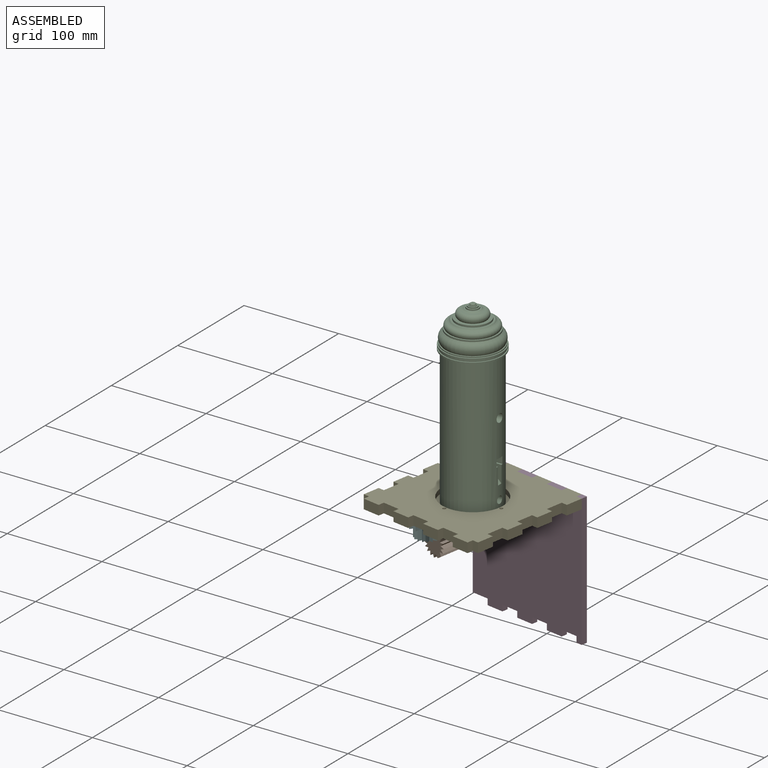
[diagram: assembled view]
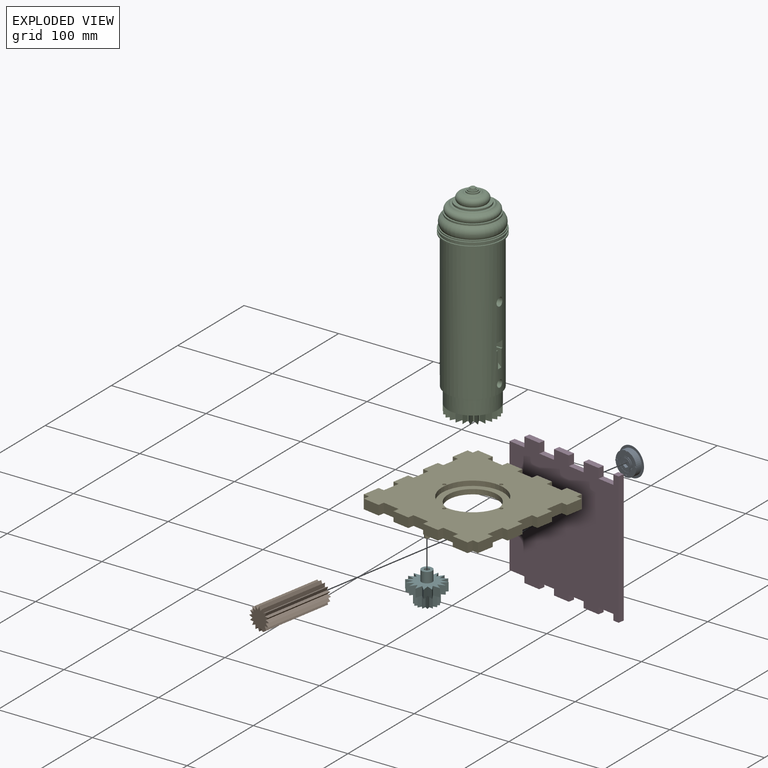
[diagram: exploded view]
GUIDED TOUR — MATED ASSEMBLY WITH SUBASSEMBLIES (Onshape document 083625c64aeed9dc65ab08f8, AutoMate assembly 083625c64aeed9dc65ab08f8_ea24382ef37ff4e3d2d488db_f4f4e9598ff6694f05141129_default)

This assembly has 22 component occurrences arranged in 6 top-level units: 5 individual components plus 1 subassembly (S0). The tour has two levels: first the top level, where each subassembly is treated as one rigid unit; then each subassembly is toured internally in its own section (nesting deeper than one subassembly level is flattened into its subassembly's section).

Components are labeled P0..P21 across the whole record; subassembly units are labeled S0..S0. A mate is a constraint between two units; its type names the relative motion it leaves free:
  CYLINDRICAL — leaves both rotation about and translation along the listed axis free,
  PLANAR — leaves sliding in the plane through the listed point (normal = the listed direction) and rotation about that normal free.
Axis/direction vectors are unit vectors and 'through' points are millimeter coordinates, both in the assembly's world frame.

TOP-LEVEL MATES (between units; each subassembly's internal mates are listed in its own section)
  1. PLANAR "Planar 4": P15 <-> P6, direction (0.985, -0.174, 0.000) through (39.18, -11.02, -2.93) mm
  2. PLANAR "Planar 2": P2 <-> S0, direction (-0.985, 0.174, 0.000) through (-59.83, 8.89, -51.19) mm
  3. PLANAR "Planar 6": P15 <-> P6, direction (0.174, 0.985, 0.000) through (42.31, -11.57, -2.93) mm
  4. PLANAR "Planar 5": P15 <-> P6, direction (0.000, 0.000, -1.000) through (-34.33, -62.51, -8.01) mm
  5. CYLINDRICAL "Cylindrical 4": P19 <-> P15, axis (0.000, 0.000, -1.000) through (-71.94, -78.05, -24.26) mm
  6. CYLINDRICAL "Cylindrical 3": P5 <-> P15, axis (0.000, 0.000, 1.000) through (-34.38, -62.53, -11.18) mm
  7. PLANAR "Planar 3": P2 <-> S0, direction (0.492, -0.087, 0.866) through (-55.42, 6.50, -48.44) mm
  8. PLANAR "Planar 8": P5 <-> P15, direction (0.000, 0.000, -1.000) through (-34.38, -62.53, -2.93) mm
  9. PLANAR "Planar 1": P15 <-> P19, direction (0.000, 0.000, -1.000) through (-34.33, -62.51, -8.01) mm
  10. CYLINDRICAL "Cylindrical 5": S0 <-> P6, axis (0.174, 0.985, 0.000) through (-56.57, 9.09, -51.19) mm
  11. PLANAR "Planar 9": P2 <-> S0, direction (0.174, 0.985, 0.000) through (-58.05, 5.35, -41.11) mm
  12. PLANAR "Planar 7": S0 <-> P6, direction (-0.174, -0.985, 0.000) through (-56.02, 12.22, -51.19) mm

TOP-LEVEL ASSEMBLY ORDER
  1. P15 — the base component [order heuristic]
  2. P6 [order verified]
  3. P19 — core [order heuristic]
  4. S0 [order verified]
  5. P5 — core [order heuristic]
  6. P2 [order verified]
(P6 verified with a relaxed clearance tolerance: the source model stores slight part interference there.)
Order-tag legend:
  [order verified] — this step's position reverses a verified removal order: the component was checked to insert without passing through the ones already placed.
  [order heuristic] — the first 3 components form the assembly's core: parts whose collision-free extraction could not be verified, listed in mate-graph order.

Of the 22 component occurrences, 19 carry the full construction recipe — the FeatureScript program that regenerates the part's solid from scratch; the rest are supplied as boundary geometry only. Each toured unit is shown spotlighted twice — assembled, then exploded with a leader line back to its socket (green = recipe-attached component, orange = geometry-only, blue = subassembly unit; the rest desaturated gray).
NOTE — this tour is split across 2 documents so each fits a 32k-token context. This is document 1: the component sections continue in the remaining 1 document, each repeating the header above.
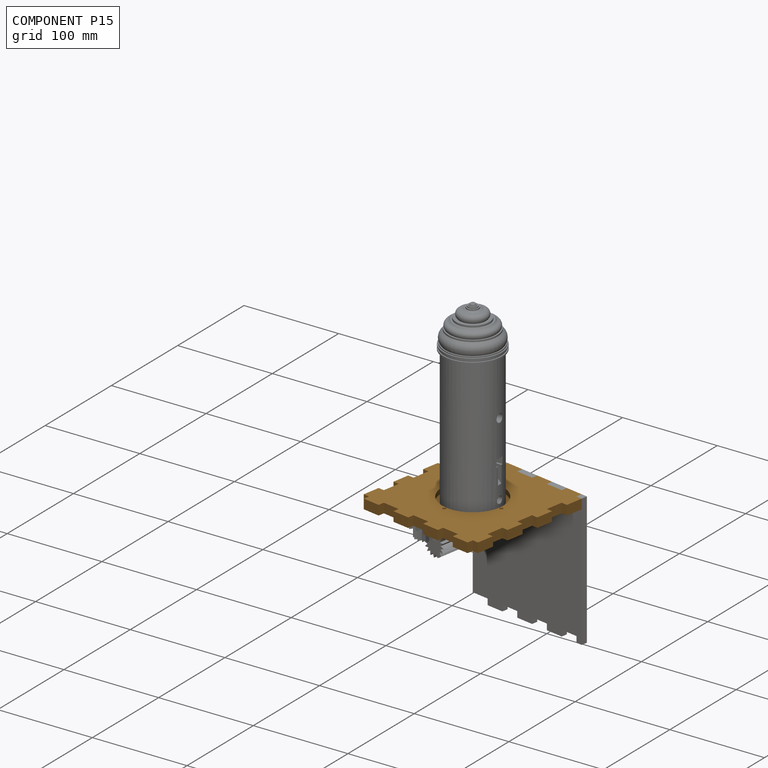
[diagram: component P15 — assembled]
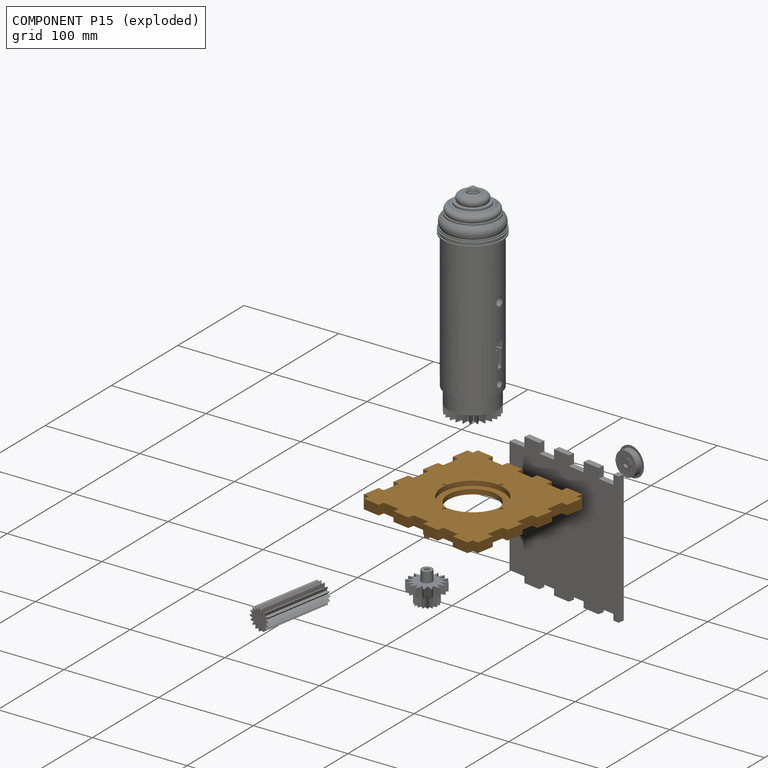
[diagram: component P15 — exploded]
COMPONENT P15 — geometry summary (no construction recipe available for this part):
  bounding box: 139.7 x 139.7 x 43.2 mm
  B-rep topology: 1 solid, 77 faces, 410 edges
  volume: 155341 mm^3 (18% of its bounding box)
Held by: PLANAR mate "Planar 4" to P6; PLANAR mate "Planar 6" to P6; PLANAR mate "Planar 5" to P6; CYLINDRICAL mate "Cylindrical 4" to P19; CYLINDRICAL mate "Cylindrical 3" to P5; PLANAR mate "Planar 8" to P5; PLANAR mate "Planar 1" to P19.
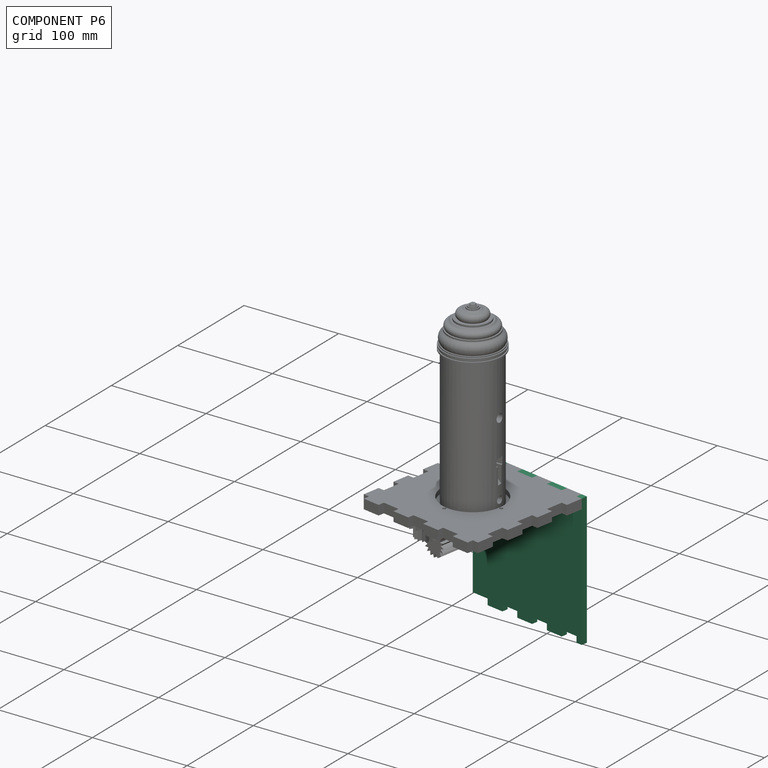
[diagram: component P6 — assembled]
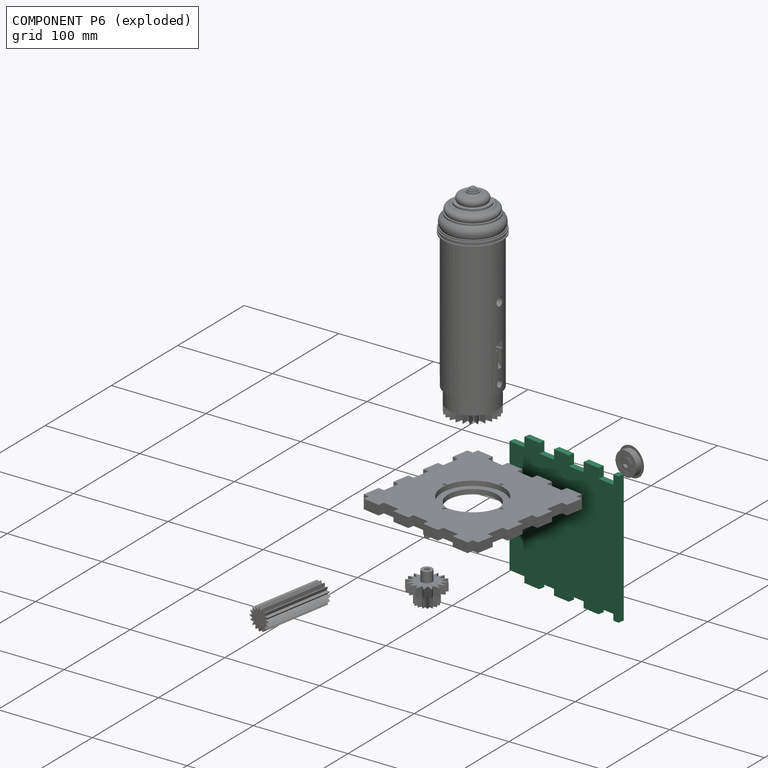
[diagram: component P6 — exploded]
COMPONENT P6 — recipe-attached (CADFS 00150279, mesh-verified: the recipe's output STEP matches this component's geometry to below the mesh-comparison resolution (tessellation chordal tolerance ~0.29 mm)).
Held by: PLANAR mate "Planar 4" to P15; PLANAR mate "Planar 6" to P15; PLANAR mate "Planar 5" to P15; CYLINDRICAL mate "Cylindrical 5" to P0; PLANAR mate "Planar 7" to P0.
Construction recipe (FeatureScript — the CAD program that rebuilds this solid; sketch coordinates are in the units given by the * unit suffixes, e.g. mm):

FeatureScript 1511;
import(path : "onshape/std/geometry.fs", version : "1511.0");
import(path : "onshape/std/common.fs", version : "1511.0");
const mm = millimeter;
const VERTEX = EntityType.VERTEX;
const EDGE = EntityType.EDGE;
const FACE = EntityType.FACE;
const BODY = EntityType.BODY;
function v(x, y){return vector(x, y);}
function OD(order){return orderDisambiguation(order);}
function OSD(set){return originalSetDisambiguation(set);}
function TD(topology){return topologyDisambiguation(topology);}
function TDD(query){return trueDependencyDisambiguation(query);}
function sQuery(a, b, c) {return sketchEntityQuery(a, b, c);}

annotation { "Feature Type Name" : "Feature", "Feature Type Description" : "" }
export const myFeature = defineFeature(function(context is Context, id is Id, definition is map)
    precondition{}
    {
        {
            var Q0;
            Q0=qCreatedBy(makeId("Front.planeOp"),FACE);
            var sketch = newSketch(context, id + "F0", { "sketchPlane" : qUnion([Q0])});
            skLineSegment(sketch, "E0.bottom", {"start": v(-66.68, 69.85) * mm, "end": v(66.67, 69.85) * mm});
            skLineSegment(sketch, "E0.top", {"start": v(-66.68, -69.85) * mm, "end": v(66.67, -69.85) * mm});
            skLineSegment(sketch, "E0.left", {"start": v(-66.68, 69.85) * mm, "end": v(-66.68, -69.85) * mm});
            skLineSegment(sketch, "E0.right", {"start": v(66.67, 69.85) * mm, "end": v(66.67, -69.85) * mm});
            skSolve(sketch);
        }
        {
            var Q0;
            Q0 = qSketchRegion(id + "F0", true);
            extrude(context, id + "F1", {"entities" : qUnion([Q0]), "depth" : 6.35 * mm});
        }
        {
            var Q0;
            Q0=makeQuery(id+"F1.opExtrude","CAP_FACE",FACE,{"disambiguationData":[OSD([sQuery(id+"F0.wireOp",EDGE,"E0.bottom"),sQuery(id+"F0.wireOp",EDGE,"E0.top"),sQuery(id+"F0.wireOp",EDGE,"E0.left"),sQuery(id+"F0.wireOp",EDGE,"E0.right")])],"isStart":false});
            var sketch = newSketch(context, id + "F2", { "sketchPlane" : qUnion([Q0])});
            skLineSegment(sketch, "E1.bottom", {"start": v(-66.68, 69.85) * mm, "end": v(66.67, 69.85) * mm});
            skLineSegment(sketch, "E1.top", {"start": v(-66.68, 59.69) * mm, "end": v(66.67, 59.69) * mm});
            skLineSegment(sketch, "E1.left", {"start": v(-66.68, 69.85) * mm, "end": v(-66.68, 59.69) * mm});
            skLineSegment(sketch, "E1.right", {"start": v(66.67, 69.85) * mm, "end": v(66.67, 59.69) * mm});
            skLineSegment(sketch, "E2", {"start": v(-60.33, 69.85) * mm, "end": v(-60.33, 59.69) * mm});
            skLineSegment(sketch, "E3", {"start": v(-42.18, 69.85) * mm, "end": v(-42.18, 59.69) * mm});
            skLineSegment(sketch, "E4", {"start": v(-24.04, 69.85) * mm, "end": v(-24.04, 59.69) * mm});
            skLineSegment(sketch, "E5", {"start": v(-5.9, 69.85) * mm, "end": v(-5.9, 59.7) * mm});
            skLineSegment(sketch, "E6", {"start": v(12.25, 69.85) * mm, "end": v(12.25, 59.7) * mm});
            skLineSegment(sketch, "E7", {"start": v(30.39, 69.85) * mm, "end": v(30.39, 59.7) * mm});
            skLineSegment(sketch, "E8", {"start": v(48.53, 69.85) * mm, "end": v(48.53, 59.7) * mm});
            skLineSegment(sketch, "E9.bottom", {"start": v(-66.68, -63.5) * mm, "end": v(66.67, -63.5) * mm});
            skLineSegment(sketch, "E9.top", {"start": v(-66.68, -69.85) * mm, "end": v(66.67, -69.85) * mm});
            skLineSegment(sketch, "E9.left", {"start": v(-66.68, -63.5) * mm, "end": v(-66.68, -69.85) * mm});
            skLineSegment(sketch, "E9.right", {"start": v(66.67, -63.5) * mm, "end": v(66.67, -69.85) * mm});
            skLineSegment(sketch, "E10", {"start": v(-60.33, 59.69) * mm, "end": v(-60.33, -69.85) * mm});
            skLineSegment(sketch, "E11", {"start": v(-42.18, 59.69) * mm, "end": v(-42.18, -69.85) * mm});
            skLineSegment(sketch, "E12", {"start": v(-24.04, 59.69) * mm, "end": v(-24.04, -69.85) * mm});
            skLineSegment(sketch, "E13", {"start": v(-5.9, 59.7) * mm, "end": v(-5.9, -69.85) * mm});
            skLineSegment(sketch, "E14", {"start": v(12.25, 59.7) * mm, "end": v(12.25, -69.85) * mm});
            skLineSegment(sketch, "E15", {"start": v(30.39, 59.7) * mm, "end": v(30.39, -69.85) * mm});
            skLineSegment(sketch, "E16", {"start": v(48.53, 59.7) * mm, "end": v(48.53, -69.85) * mm});
            skSolve(sketch);
        }
        {
            var Q0;
            {var subQ0=sQuery(id+"F2.wireOp",EDGE,"E1.right");Q0=makeQuery(id+"F2.imprint","IMPRINT",FACE,{"disambiguationData":[TD([[makeQuery(id+"F2.imprint","IMPRINT",EDGE,{"derivedFrom":subQ0}),-1.0]])]});}
            var Q1;
            {var subQ0=sQuery(id+"F2.wireOp",EDGE,"E2");Q1=makeQuery(id+"F2.imprint","IMPRINT",FACE,{"disambiguationData":[TD([[makeQuery(id+"F2.imprint","IMPRINT",EDGE,{"derivedFrom":subQ0}),1.0]])]});}
            var Q2;
            {var subQ0=sQuery(id+"F2.wireOp",EDGE,"E4");Q2=makeQuery(id+"F2.imprint","IMPRINT",FACE,{"disambiguationData":[TD([[makeQuery(id+"F2.imprint","IMPRINT",EDGE,{"derivedFrom":subQ0}),1.0]])]});}
            var Q3;
            {var subQ0=sQuery(id+"F2.wireOp",EDGE,"E6");Q3=makeQuery(id+"F2.imprint","IMPRINT",FACE,{"disambiguationData":[TD([[makeQuery(id+"F2.imprint","IMPRINT",EDGE,{"derivedFrom":subQ0}),1.0]])]});}
            var Q4;
            {var subQ0=sQuery(id+"F2.wireOp",EDGE,"E10");var subQ1=sQuery(id+"F2.wireOp",EDGE,"E9.bottom");var subQ2=makeQuery(id+"F2.imprint","INTERSECT",VERTEX,{"derivedFrom":[subQ1,subQ0]});Q4=makeQuery(id+"F2.imprint","IMPRINT",FACE,{"disambiguationData":[TD([[makeQuery(id+"F2.imprint","IMPRINT",EDGE,{"disambiguationData":[TD([[subQ2,-1.0]])],"derivedFrom":subQ1}),-1.0]])]});}
            var Q5;
            {var subQ0=sQuery(id+"F2.wireOp",EDGE,"E12");var subQ1=sQuery(id+"F2.wireOp",EDGE,"E9.bottom");var subQ2=makeQuery(id+"F2.imprint","INTERSECT",VERTEX,{"derivedFrom":[subQ1,subQ0]});Q5=makeQuery(id+"F2.imprint","IMPRINT",FACE,{"disambiguationData":[TD([[makeQuery(id+"F2.imprint","IMPRINT",EDGE,{"disambiguationData":[TD([[subQ2,-1.0]])],"derivedFrom":subQ1}),-1.0]])]});}
            var Q6;
            {var subQ0=sQuery(id+"F2.wireOp",EDGE,"E14");var subQ1=sQuery(id+"F2.wireOp",EDGE,"E9.bottom");var subQ2=makeQuery(id+"F2.imprint","INTERSECT",VERTEX,{"derivedFrom":[subQ1,subQ0]});Q6=makeQuery(id+"F2.imprint","IMPRINT",FACE,{"disambiguationData":[TD([[makeQuery(id+"F2.imprint","IMPRINT",EDGE,{"disambiguationData":[TD([[subQ2,-1.0]])],"derivedFrom":subQ1}),-1.0]])]});}
            var Q7;
            {var subQ0=sQuery(id+"F2.wireOp",EDGE,"E9.right");Q7=makeQuery(id+"F2.imprint","IMPRINT",FACE,{"disambiguationData":[TD([[makeQuery(id+"F2.imprint","IMPRINT",EDGE,{"derivedFrom":subQ0}),-1.0]])]});}
            extrude(context, id + "F3", {"entities" : qUnion([Q0, Q1, Q2, Q3, Q4, Q5, Q6, Q7]), "operationType" : NewBodyOperationType.REMOVE, "oppositeDirection" : true, "depth" : 25.4 * mm});
        }
        {
            var Q0;
            Q0=makeQuery(id+"F1.opExtrude","CAP_FACE",FACE,{"disambiguationData":[OSD([sQuery(id+"F0.wireOp",EDGE,"E0.bottom"),sQuery(id+"F0.wireOp",EDGE,"E0.top"),sQuery(id+"F0.wireOp",EDGE,"E0.left"),sQuery(id+"F0.wireOp",EDGE,"E0.right")])],"isStart":false});
            var sketch = newSketch(context, id + "F4", { "sketchPlane" : qUnion([Q0])});
            skCircle(sketch, "E17", {"center": v(37.46, 16.5) * mm, "radius": 12.7 * mm});
            skSolve(sketch);
        }
        {
            var Q0;
            Q0=makeQuery(id+"F4.imprint","IMPRINT",FACE,{"disambiguationData":[TD([[makeQuery(id+"F4.imprint","IMPRINT",EDGE,{"derivedFrom":sQuery(id+"F4.wireOp",EDGE,"E17")}),1.0]])]});
            extrude(context, id + "F5", {"entities" : qUnion([Q0]), "operationType" : NewBodyOperationType.REMOVE, "oppositeDirection" : true, "depth" : 25.4 * mm});
        }
    });
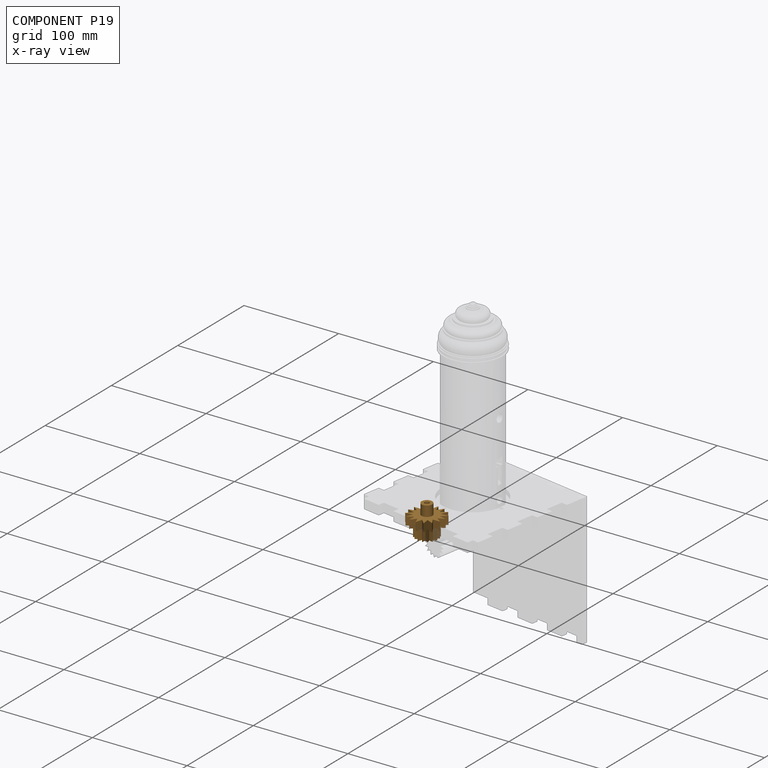
[diagram: component P19 — x-ray view]
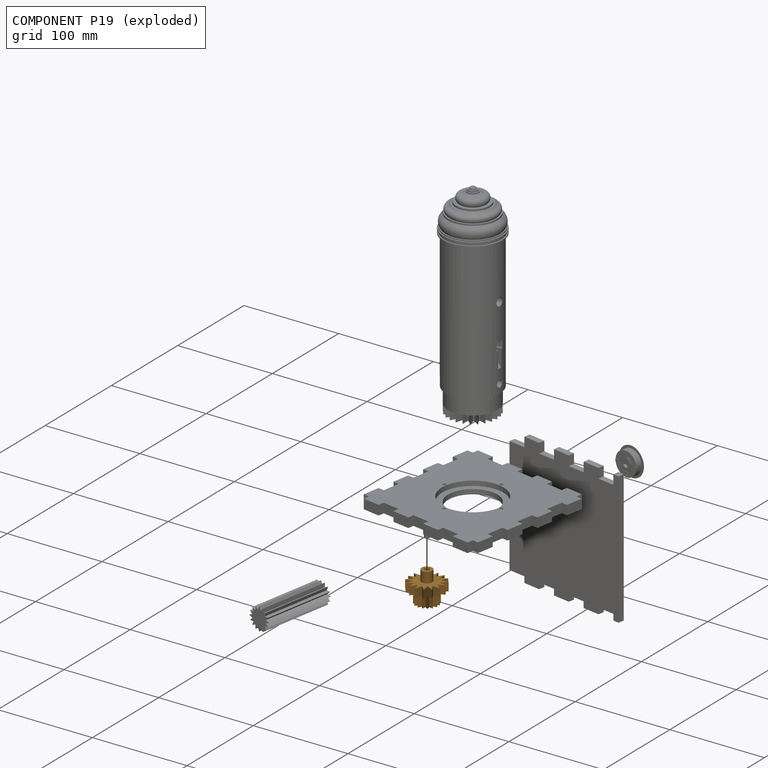
[diagram: component P19 — exploded]
COMPONENT P19 — geometry summary (no construction recipe available for this part):
  bounding box: 37.4 x 37.4 x 32.5 mm
  B-rep topology: 1 solid, 85 faces, 398 edges
  volume: 10788 mm^3 (24% of its bounding box)
  symmetry: 4-fold rotationally symmetric about the y axis; mirror-symmetric across its x mid-plane, z mid-plane
Held by: CYLINDRICAL mate "Cylindrical 4" to P15; PLANAR mate "Planar 1" to P15.
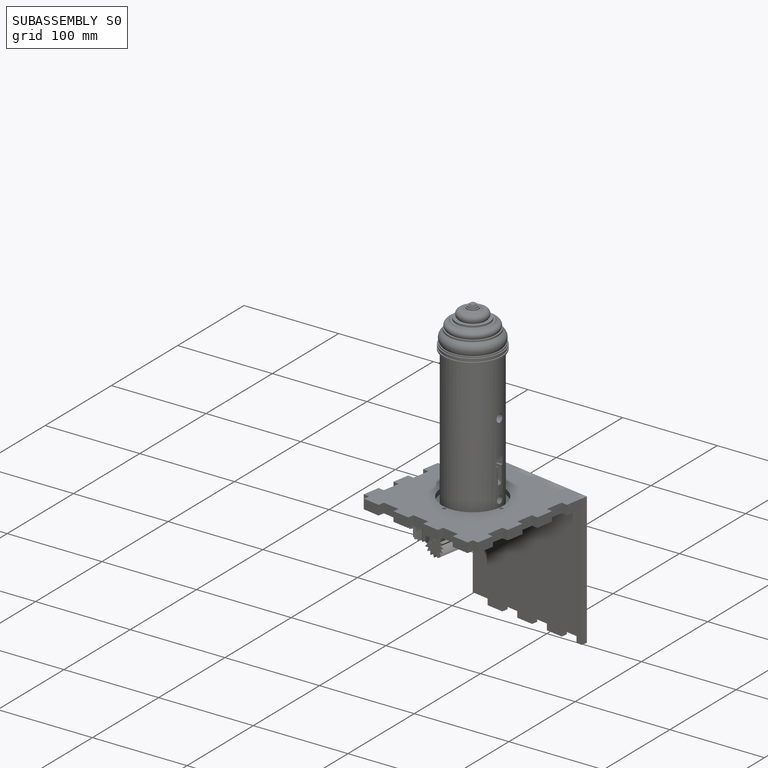
[diagram: subassembly S0 — assembled]
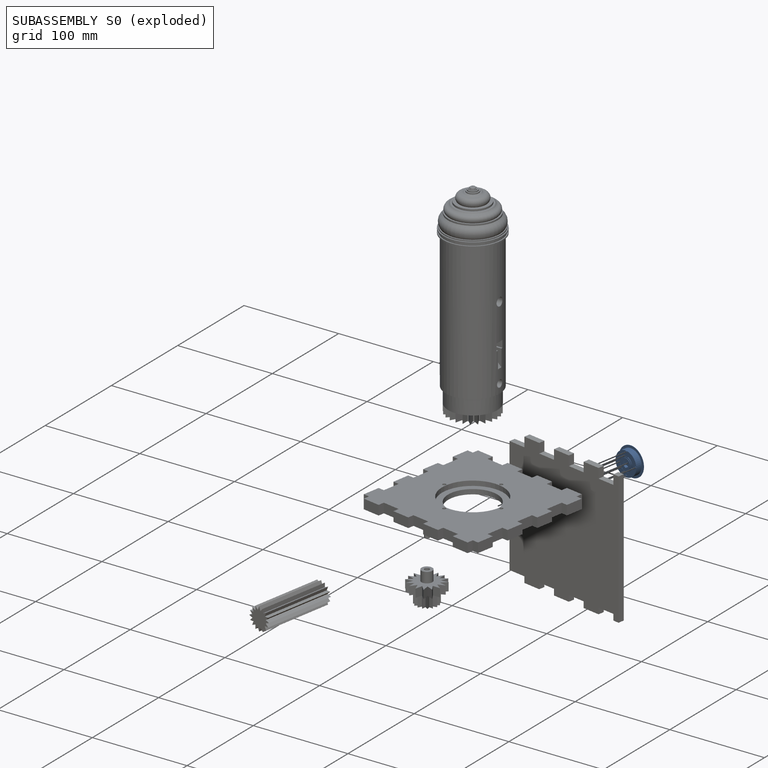
[diagram: subassembly S0 — exploded]
SUBASSEMBLY S0 — 17 components (P0, P1, P3, P4, P7, P8, P9, P10, P11, P12, P13, P14, P16, P17, P18, P20, P21), of which 17 recipe-attached; toured below.
Held by: PLANAR mate "Planar 2" to P2; PLANAR mate "Planar 3" to P2; CYLINDRICAL mate "Cylindrical 5" to P6; PLANAR mate "Planar 9" to P2; PLANAR mate "Planar 7" to P6.
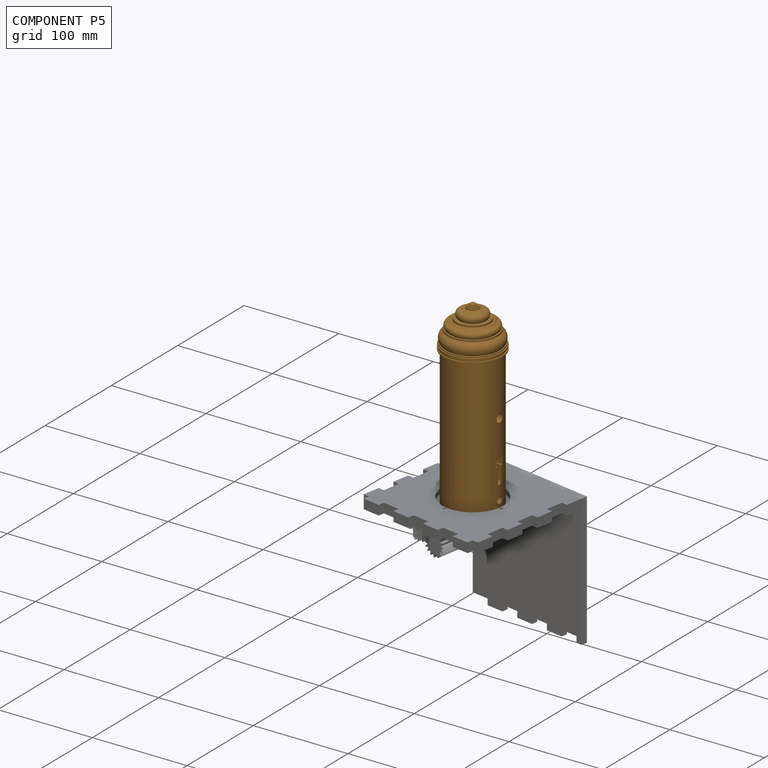
[diagram: component P5 — assembled]
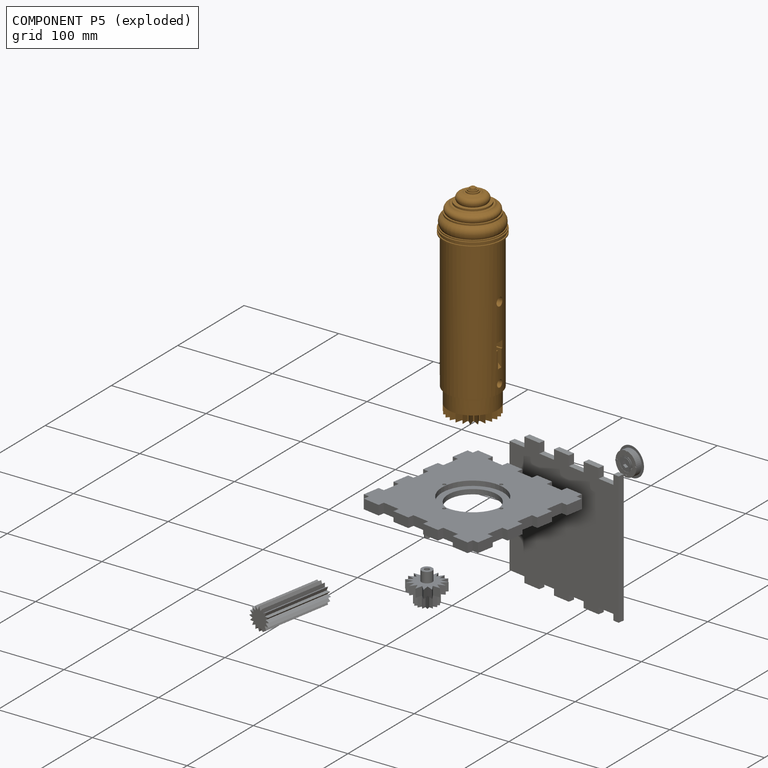
[diagram: component P5 — exploded]
COMPONENT P5 — geometry summary (no construction recipe available for this part):
  bounding box: 216.0 x 65.5 x 65.5 mm
  B-rep topology: 1 solid, 161 faces, 756 edges
  volume: 353043 mm^3 (38% of its bounding box)
  symmetry: 2-fold rotationally symmetric about the y axis; mirror-symmetric across its x mid-plane, z mid-plane
Held by: CYLINDRICAL mate "Cylindrical 3" to P15; PLANAR mate "Planar 8" to P15.
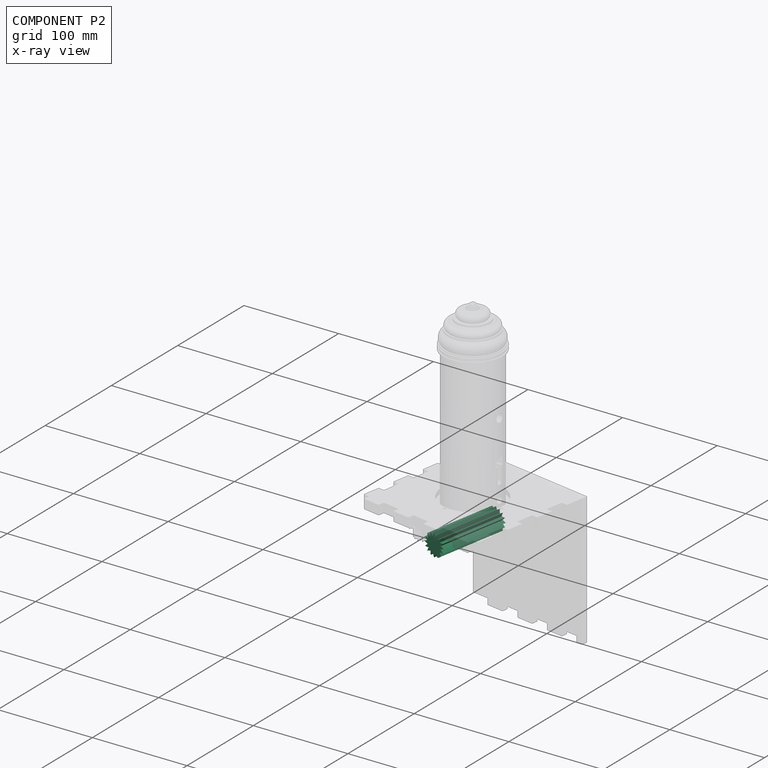
[diagram: component P2 — x-ray view]
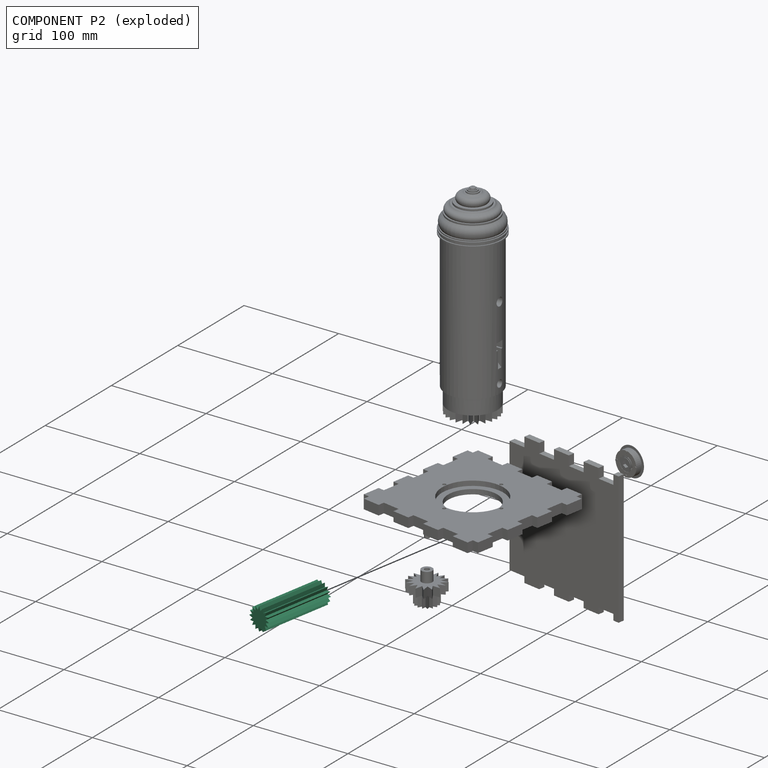
[diagram: component P2 — exploded]
COMPONENT P2 — recipe-attached (CADFS 00150282, mesh-verified: the recipe's output STEP matches this component's geometry to below the mesh-comparison resolution (tessellation chordal tolerance ~0.129 mm)).
Held by: PLANAR mate "Planar 2" to P0; PLANAR mate "Planar 3" to P0; PLANAR mate "Planar 9" to P0.
Construction recipe (FeatureScript — the CAD program that rebuilds this solid; sketch coordinates are in the units given by the * unit suffixes, e.g. mm):

FeatureScript 1511;
import(path : "onshape/std/geometry.fs", version : "1511.0");
import(path : "onshape/std/common.fs", version : "1511.0");
const mm = millimeter;
const VERTEX = EntityType.VERTEX;
const EDGE = EntityType.EDGE;
const FACE = EntityType.FACE;
const BODY = EntityType.BODY;
function v(x, y){return vector(x, y);}
function OD(order){return orderDisambiguation(order);}
function OSD(set){return originalSetDisambiguation(set);}
function TD(topology){return topologyDisambiguation(topology);}
function TDD(query){return trueDependencyDisambiguation(query);}
function sQuery(a, b, c) {return sketchEntityQuery(a, b, c);}

annotation { "Feature Type Name" : "Feature", "Feature Type Description" : "" }
export const myFeature = defineFeature(function(context is Context, id is Id, definition is map)
    precondition{}
    {
        {
            var Q0;
            Q0=qCreatedBy(makeId("Front.planeOp"),FACE);
            var sketch = newSketch(context, id + "F0", { "sketchPlane" : qUnion([Q0])});
            skCircle(sketch, "E0", {"center": v(0, 0) * mm, "radius": 12.07 * mm});
            skCircle(sketch, "E1", {"center": v(0, 0) * mm, "radius": 8.26 * mm});
            skLineSegment(sketch, "E2", {"start": v(0, 12.07) * mm, "end": v(0, -12.06) * mm});
            skLineSegment(sketch, "E3", {"start": v(-4.62, 11.15) * mm, "end": v(0, 0) * mm});
            skLineSegment(sketch, "E4", {"start": v(-12.06, 0) * mm, "end": v(12.07, 0) * mm});
            skLineSegment(sketch, "E5", {"start": v(-8.53, 8.53) * mm, "end": v(0, 0) * mm});
            skLineSegment(sketch, "E6", {"start": v(-11.15, 4.62) * mm, "end": v(0, 0) * mm});
            skLineSegment(sketch, "E7", {"start": v(-11.15, -4.62) * mm, "end": v(0, 0) * mm});
            skLineSegment(sketch, "E8", {"start": v(4.62, 11.15) * mm, "end": v(0, 0) * mm});
            skLineSegment(sketch, "E9", {"start": v(8.53, 8.53) * mm, "end": v(0, 0) * mm});
            skLineSegment(sketch, "E10", {"start": v(11.15, 4.62) * mm, "end": v(0, 0) * mm});
            skLineSegment(sketch, "E11", {"start": v(11.15, -4.62) * mm, "end": v(0, 0) * mm});
            skLineSegment(sketch, "E12", {"start": v(8.53, -8.53) * mm, "end": v(0, 0) * mm});
            skLineSegment(sketch, "E13", {"start": v(-8.53, -8.53) * mm, "end": v(0, 0) * mm});
            skLineSegment(sketch, "E14", {"start": v(-4.62, -11.15) * mm, "end": v(0, 0) * mm});
            skLineSegment(sketch, "E15", {"start": v(4.62, -11.15) * mm, "end": v(0, 0) * mm});
            skLineSegment(sketch, "E16", {"start": v(-3.72, 18.68) * mm, "end": v(0, 0) * mm});
            skLineSegment(sketch, "E17", {"start": v(3.72, -18.68) * mm, "end": v(0, 0) * mm});
            skLineSegment(sketch, "E18", {"start": v(3.72, 18.68) * mm, "end": v(0, 0) * mm});
            skLineSegment(sketch, "E19", {"start": v(-3.72, -18.68) * mm, "end": v(0, 0) * mm});
            skLineSegment(sketch, "E20", {"start": v(15.84, -10.58) * mm, "end": v(0, 0) * mm});
            skLineSegment(sketch, "E21", {"start": v(18.68, -3.72) * mm, "end": v(0, 0) * mm});
            skLineSegment(sketch, "E22", {"start": v(-10.58, -15.84) * mm, "end": v(0, 0) * mm});
            skLineSegment(sketch, "E23", {"start": v(-15.84, -10.58) * mm, "end": v(0, 0) * mm});
            skLineSegment(sketch, "E24", {"start": v(-18.68, -3.72) * mm, "end": v(0, 0) * mm});
            skLineSegment(sketch, "E25", {"start": v(-18.68, 3.72) * mm, "end": v(0, 0) * mm});
            skLineSegment(sketch, "E26", {"start": v(-10.58, 15.84) * mm, "end": v(0, 0) * mm});
            skLineSegment(sketch, "E27", {"start": v(10.58, 15.84) * mm, "end": v(0, 0) * mm});
            skLineSegment(sketch, "E28", {"start": v(-15.84, 10.58) * mm, "end": v(0, 0) * mm});
            skLineSegment(sketch, "E29", {"start": v(15.84, 10.58) * mm, "end": v(0, 0) * mm});
            skLineSegment(sketch, "E30", {"start": v(18.68, 3.72) * mm, "end": v(0, 0) * mm});
            skLineSegment(sketch, "E31", {"start": v(10.58, -15.84) * mm, "end": v(0, 0) * mm});
            skLineSegment(sketch, "E32", {"start": v(-8.53, 8.53) * mm, "end": v(-4.59, 6.86) * mm});
            skLineSegment(sketch, "E33", {"start": v(-4.59, 6.86) * mm, "end": v(-4.62, 11.15) * mm});
            skLineSegment(sketch, "E34", {"start": v(-4.62, 11.15) * mm, "end": v(-1.61, 8.1) * mm});
            skLineSegment(sketch, "E35", {"start": v(-1.61, 8.1) * mm, "end": v(0, 12.07) * mm});
            skLineSegment(sketch, "E36", {"start": v(0, 12.07) * mm, "end": v(1.61, 8.1) * mm});
            skLineSegment(sketch, "E37", {"start": v(1.61, 8.1) * mm, "end": v(4.62, 11.15) * mm});
            skLineSegment(sketch, "E38", {"start": v(4.62, 11.15) * mm, "end": v(4.59, 6.86) * mm});
            skLineSegment(sketch, "E39", {"start": v(4.59, 6.86) * mm, "end": v(8.53, 8.53) * mm});
            skLineSegment(sketch, "E40", {"start": v(-8.53, 8.53) * mm, "end": v(-6.86, 4.59) * mm});
            skLineSegment(sketch, "E41", {"start": v(-6.86, 4.59) * mm, "end": v(-11.15, 4.62) * mm});
            skLineSegment(sketch, "E42", {"start": v(-11.15, 4.62) * mm, "end": v(-8.1, 1.61) * mm});
            skLineSegment(sketch, "E43", {"start": v(-8.1, 1.61) * mm, "end": v(-12.06, 0) * mm});
            skLineSegment(sketch, "E44", {"start": v(8.53, 8.53) * mm, "end": v(6.86, 4.59) * mm});
            skLineSegment(sketch, "E45", {"start": v(6.86, 4.59) * mm, "end": v(11.15, 4.62) * mm});
            skLineSegment(sketch, "E46", {"start": v(11.15, 4.62) * mm, "end": v(8.1, 1.61) * mm});
            skLineSegment(sketch, "E47", {"start": v(8.1, 1.61) * mm, "end": v(12.07, 0) * mm});
            skLineSegment(sketch, "E48", {"start": v(0, -12.06) * mm, "end": v(1.61, -8.1) * mm});
            skLineSegment(sketch, "E49", {"start": v(1.61, -8.1) * mm, "end": v(4.62, -11.15) * mm});
            skLineSegment(sketch, "E50", {"start": v(0, -12.06) * mm, "end": v(-1.61, -8.1) * mm});
            skLineSegment(sketch, "E51", {"start": v(-1.61, -8.1) * mm, "end": v(-4.62, -11.15) * mm});
            skLineSegment(sketch, "E52", {"start": v(12.07, 0) * mm, "end": v(8.1, -1.61) * mm});
            skLineSegment(sketch, "E53", {"start": v(8.1, -1.61) * mm, "end": v(11.15, -4.62) * mm});
            skLineSegment(sketch, "E54", {"start": v(-12.06, 0) * mm, "end": v(-8.1, -1.61) * mm});
            skLineSegment(sketch, "E55", {"start": v(-8.1, -1.61) * mm, "end": v(-11.15, -4.62) * mm});
            skLineSegment(sketch, "E56", {"start": v(-6.86, -4.59) * mm, "end": v(-11.15, -4.62) * mm});
            skLineSegment(sketch, "E57", {"start": v(-6.86, -4.59) * mm, "end": v(-8.53, -8.53) * mm});
            skLineSegment(sketch, "E58", {"start": v(6.86, -4.59) * mm, "end": v(11.15, -4.62) * mm});
            skLineSegment(sketch, "E59", {"start": v(6.86, -4.59) * mm, "end": v(8.53, -8.53) * mm});
            skLineSegment(sketch, "E60", {"start": v(4.59, -6.86) * mm, "end": v(8.53, -8.53) * mm});
            skLineSegment(sketch, "E61", {"start": v(-4.59, -6.86) * mm, "end": v(-8.53, -8.53) * mm});
            skLineSegment(sketch, "E62", {"start": v(-4.59, -6.86) * mm, "end": v(-4.62, -11.15) * mm});
            skLineSegment(sketch, "E63", {"start": v(4.59, -6.86) * mm, "end": v(4.62, -11.15) * mm});
            skSolve(sketch);
        }
        {
            var Q0;
            {var subQ0=sQuery(id+"F0.wireOp",EDGE,"E47");Q0=makeQuery(id+"F0.imprint","IMPRINT",FACE,{"disambiguationData":[TD([[makeQuery(id+"F0.imprint","IMPRINT",EDGE,{"derivedFrom":subQ0}),-1.0]])]});}
            var Q1;
            {var subQ0=sQuery(id+"F0.wireOp",EDGE,"E46");Q1=makeQuery(id+"F0.imprint","IMPRINT",FACE,{"disambiguationData":[TD([[makeQuery(id+"F0.imprint","IMPRINT",EDGE,{"derivedFrom":subQ0}),-1.0]])]});}
            var Q2;
            {var subQ0=sQuery(id+"F0.wireOp",EDGE,"E45");Q2=makeQuery(id+"F0.imprint","IMPRINT",FACE,{"disambiguationData":[TD([[makeQuery(id+"F0.imprint","IMPRINT",EDGE,{"derivedFrom":subQ0}),-1.0]])]});}
            var Q3;
            {var subQ0=sQuery(id+"F0.wireOp",EDGE,"E44");Q3=makeQuery(id+"F0.imprint","IMPRINT",FACE,{"disambiguationData":[TD([[makeQuery(id+"F0.imprint","IMPRINT",EDGE,{"derivedFrom":subQ0}),-1.0]])]});}
            var Q4;
            {var subQ0=sQuery(id+"F0.wireOp",EDGE,"E39");Q4=makeQuery(id+"F0.imprint","IMPRINT",FACE,{"disambiguationData":[TD([[makeQuery(id+"F0.imprint","IMPRINT",EDGE,{"derivedFrom":subQ0}),-1.0]])]});}
            var Q5;
            {var subQ0=sQuery(id+"F0.wireOp",EDGE,"E38");Q5=makeQuery(id+"F0.imprint","IMPRINT",FACE,{"disambiguationData":[TD([[makeQuery(id+"F0.imprint","IMPRINT",EDGE,{"derivedFrom":subQ0}),-1.0]])]});}
            var Q6;
            {var subQ0=sQuery(id+"F0.wireOp",EDGE,"E37");Q6=makeQuery(id+"F0.imprint","IMPRINT",FACE,{"disambiguationData":[TD([[makeQuery(id+"F0.imprint","IMPRINT",EDGE,{"derivedFrom":subQ0}),-1.0]])]});}
            var Q7;
            {var subQ0=sQuery(id+"F0.wireOp",EDGE,"E36");Q7=makeQuery(id+"F0.imprint","IMPRINT",FACE,{"disambiguationData":[TD([[makeQuery(id+"F0.imprint","IMPRINT",EDGE,{"derivedFrom":subQ0}),-1.0]])]});}
            var Q8;
            {var subQ0=sQuery(id+"F0.wireOp",EDGE,"E35");Q8=makeQuery(id+"F0.imprint","IMPRINT",FACE,{"disambiguationData":[TD([[makeQuery(id+"F0.imprint","IMPRINT",EDGE,{"derivedFrom":subQ0}),-1.0]])]});}
            var Q9;
            {var subQ0=sQuery(id+"F0.wireOp",EDGE,"E34");Q9=makeQuery(id+"F0.imprint","IMPRINT",FACE,{"disambiguationData":[TD([[makeQuery(id+"F0.imprint","IMPRINT",EDGE,{"derivedFrom":subQ0}),-1.0]])]});}
            var Q10;
            {var subQ0=sQuery(id+"F0.wireOp",EDGE,"E33");Q10=makeQuery(id+"F0.imprint","IMPRINT",FACE,{"disambiguationData":[TD([[makeQuery(id+"F0.imprint","IMPRINT",EDGE,{"derivedFrom":subQ0}),-1.0]])]});}
            var Q11;
            {var subQ0=sQuery(id+"F0.wireOp",EDGE,"E32");Q11=makeQuery(id+"F0.imprint","IMPRINT",FACE,{"disambiguationData":[TD([[makeQuery(id+"F0.imprint","IMPRINT",EDGE,{"derivedFrom":subQ0}),-1.0]])]});}
            var Q12;
            {var subQ0=sQuery(id+"F0.wireOp",EDGE,"E40");Q12=makeQuery(id+"F0.imprint","IMPRINT",FACE,{"disambiguationData":[TD([[makeQuery(id+"F0.imprint","IMPRINT",EDGE,{"derivedFrom":subQ0}),1.0]])]});}
            var Q13;
            {var subQ0=sQuery(id+"F0.wireOp",EDGE,"E41");Q13=makeQuery(id+"F0.imprint","IMPRINT",FACE,{"disambiguationData":[TD([[makeQuery(id+"F0.imprint","IMPRINT",EDGE,{"derivedFrom":subQ0}),1.0]])]});}
            var Q14;
            {var subQ0=sQuery(id+"F0.wireOp",EDGE,"E42");Q14=makeQuery(id+"F0.imprint","IMPRINT",FACE,{"disambiguationData":[TD([[makeQuery(id+"F0.imprint","IMPRINT",EDGE,{"derivedFrom":subQ0}),1.0]])]});}
            var Q15;
            {var subQ0=sQuery(id+"F0.wireOp",EDGE,"E43");Q15=makeQuery(id+"F0.imprint","IMPRINT",FACE,{"disambiguationData":[TD([[makeQuery(id+"F0.imprint","IMPRINT",EDGE,{"derivedFrom":subQ0}),1.0]])]});}
            var Q16;
            {var subQ0=sQuery(id+"F0.wireOp",EDGE,"E54");Q16=makeQuery(id+"F0.imprint","IMPRINT",FACE,{"disambiguationData":[TD([[makeQuery(id+"F0.imprint","IMPRINT",EDGE,{"derivedFrom":subQ0}),1.0]])]});}
            var Q17;
            {var subQ0=sQuery(id+"F0.wireOp",EDGE,"E55");Q17=makeQuery(id+"F0.imprint","IMPRINT",FACE,{"disambiguationData":[TD([[makeQuery(id+"F0.imprint","IMPRINT",EDGE,{"derivedFrom":subQ0}),1.0]])]});}
            var Q18;
            {var subQ0=sQuery(id+"F0.wireOp",EDGE,"E56");Q18=makeQuery(id+"F0.imprint","IMPRINT",FACE,{"disambiguationData":[TD([[makeQuery(id+"F0.imprint","IMPRINT",EDGE,{"derivedFrom":subQ0}),-1.0]])]});}
            var Q19;
            {var subQ0=sQuery(id+"F0.wireOp",EDGE,"E57");Q19=makeQuery(id+"F0.imprint","IMPRINT",FACE,{"disambiguationData":[TD([[makeQuery(id+"F0.imprint","IMPRINT",EDGE,{"derivedFrom":subQ0}),1.0]])]});}
            var Q20;
            {var subQ0=sQuery(id+"F0.wireOp",EDGE,"E61");Q20=makeQuery(id+"F0.imprint","IMPRINT",FACE,{"disambiguationData":[TD([[makeQuery(id+"F0.imprint","IMPRINT",EDGE,{"derivedFrom":subQ0}),-1.0]])]});}
            var Q21;
            {var subQ0=sQuery(id+"F0.wireOp",EDGE,"E62");Q21=makeQuery(id+"F0.imprint","IMPRINT",FACE,{"disambiguationData":[TD([[makeQuery(id+"F0.imprint","IMPRINT",EDGE,{"derivedFrom":subQ0}),1.0]])]});}
            var Q22;
            {var subQ0=sQuery(id+"F0.wireOp",EDGE,"E51");Q22=makeQuery(id+"F0.imprint","IMPRINT",FACE,{"disambiguationData":[TD([[makeQuery(id+"F0.imprint","IMPRINT",EDGE,{"derivedFrom":subQ0}),-1.0]])]});}
            var Q23;
            {var subQ0=sQuery(id+"F0.wireOp",EDGE,"E50");Q23=makeQuery(id+"F0.imprint","IMPRINT",FACE,{"disambiguationData":[TD([[makeQuery(id+"F0.imprint","IMPRINT",EDGE,{"derivedFrom":subQ0}),-1.0]])]});}
            var Q24;
            {var subQ0=sQuery(id+"F0.wireOp",EDGE,"E48");Q24=makeQuery(id+"F0.imprint","IMPRINT",FACE,{"disambiguationData":[TD([[makeQuery(id+"F0.imprint","IMPRINT",EDGE,{"derivedFrom":subQ0}),1.0]])]});}
            var Q25;
            {var subQ0=sQuery(id+"F0.wireOp",EDGE,"E49");Q25=makeQuery(id+"F0.imprint","IMPRINT",FACE,{"disambiguationData":[TD([[makeQuery(id+"F0.imprint","IMPRINT",EDGE,{"derivedFrom":subQ0}),1.0]])]});}
            var Q26;
            {var subQ0=sQuery(id+"F0.wireOp",EDGE,"E63");Q26=makeQuery(id+"F0.imprint","IMPRINT",FACE,{"disambiguationData":[TD([[makeQuery(id+"F0.imprint","IMPRINT",EDGE,{"derivedFrom":subQ0}),-1.0]])]});}
            var Q27;
            {var subQ0=sQuery(id+"F0.wireOp",EDGE,"E60");Q27=makeQuery(id+"F0.imprint","IMPRINT",FACE,{"disambiguationData":[TD([[makeQuery(id+"F0.imprint","IMPRINT",EDGE,{"derivedFrom":subQ0}),1.0]])]});}
            var Q28;
            {var subQ0=sQuery(id+"F0.wireOp",EDGE,"E59");Q28=makeQuery(id+"F0.imprint","IMPRINT",FACE,{"disambiguationData":[TD([[makeQuery(id+"F0.imprint","IMPRINT",EDGE,{"derivedFrom":subQ0}),-1.0]])]});}
            var Q29;
            {var subQ0=sQuery(id+"F0.wireOp",EDGE,"E58");Q29=makeQuery(id+"F0.imprint","IMPRINT",FACE,{"disambiguationData":[TD([[makeQuery(id+"F0.imprint","IMPRINT",EDGE,{"derivedFrom":subQ0}),1.0]])]});}
            var Q30;
            {var subQ0=sQuery(id+"F0.wireOp",EDGE,"E53");Q30=makeQuery(id+"F0.imprint","IMPRINT",FACE,{"disambiguationData":[TD([[makeQuery(id+"F0.imprint","IMPRINT",EDGE,{"derivedFrom":subQ0}),-1.0]])]});}
            var Q31;
            {var subQ0=sQuery(id+"F0.wireOp",EDGE,"E52");Q31=makeQuery(id+"F0.imprint","IMPRINT",FACE,{"disambiguationData":[TD([[makeQuery(id+"F0.imprint","IMPRINT",EDGE,{"derivedFrom":subQ0}),-1.0]])]});}
            var Q32;
            {var subQ1=sQuery(id+"F0.wireOp",EDGE,"E1");var subQ3=sQuery(id+"F0.wireOp",EDGE,"E3");var subQ4=makeQuery(id+"F0.imprint","INTERSECT",VERTEX,{"derivedFrom":[subQ1,subQ3]});Q32=makeQuery(id+"F0.imprint","IMPRINT",FACE,{"disambiguationData":[TD([[makeQuery(id+"F0.imprint","IMPRINT",EDGE,{"disambiguationData":[TD([[subQ4,1.0]])],"derivedFrom":subQ1}),1.0]])]});}
            var Q33;
            {var subQ1=sQuery(id+"F0.wireOp",EDGE,"E1");var subQ3=sQuery(id+"F0.wireOp",EDGE,"E3");var subQ4=makeQuery(id+"F0.imprint","INTERSECT",VERTEX,{"derivedFrom":[subQ1,subQ3]});Q33=makeQuery(id+"F0.imprint","IMPRINT",FACE,{"disambiguationData":[TD([[makeQuery(id+"F0.imprint","IMPRINT",EDGE,{"disambiguationData":[TD([[subQ4,-1.0]])],"derivedFrom":subQ1}),1.0]])]});}
            var Q34;
            {var subQ1=sQuery(id+"F0.wireOp",EDGE,"E1");var subQ3=sQuery(id+"F0.wireOp",EDGE,"E2");var subQ4=makeQuery(id+"F0.imprint","INTERSECT",VERTEX,{"disambiguationData":[OD(0.0)],"derivedFrom":[subQ1,subQ3]});Q34=makeQuery(id+"F0.imprint","IMPRINT",FACE,{"disambiguationData":[TD([[makeQuery(id+"F0.imprint","IMPRINT",EDGE,{"disambiguationData":[TD([[subQ4,-1.0]])],"derivedFrom":subQ1}),1.0]])]});}
            var Q35;
            {var subQ1=sQuery(id+"F0.wireOp",EDGE,"E1");var subQ3=sQuery(id+"F0.wireOp",EDGE,"E2");var subQ4=makeQuery(id+"F0.imprint","INTERSECT",VERTEX,{"disambiguationData":[OD(0.0)],"derivedFrom":[subQ1,subQ3]});Q35=makeQuery(id+"F0.imprint","IMPRINT",FACE,{"disambiguationData":[TD([[makeQuery(id+"F0.imprint","IMPRINT",EDGE,{"disambiguationData":[TD([[subQ4,1.0]])],"derivedFrom":subQ1}),1.0]])]});}
            var Q36;
            {var subQ1=sQuery(id+"F0.wireOp",EDGE,"E1");var subQ3=sQuery(id+"F0.wireOp",EDGE,"E8");var subQ4=makeQuery(id+"F0.imprint","INTERSECT",VERTEX,{"derivedFrom":[subQ1,subQ3]});Q36=makeQuery(id+"F0.imprint","IMPRINT",FACE,{"disambiguationData":[TD([[makeQuery(id+"F0.imprint","IMPRINT",EDGE,{"disambiguationData":[TD([[subQ4,-1.0]])],"derivedFrom":subQ1}),1.0]])]});}
            var Q37;
            {var subQ1=sQuery(id+"F0.wireOp",EDGE,"E1");var subQ3=sQuery(id+"F0.wireOp",EDGE,"E8");var subQ4=makeQuery(id+"F0.imprint","INTERSECT",VERTEX,{"derivedFrom":[subQ1,subQ3]});Q37=makeQuery(id+"F0.imprint","IMPRINT",FACE,{"disambiguationData":[TD([[makeQuery(id+"F0.imprint","IMPRINT",EDGE,{"disambiguationData":[TD([[subQ4,1.0]])],"derivedFrom":subQ1}),1.0]])]});}
            var Q38;
            {var subQ1=sQuery(id+"F0.wireOp",EDGE,"E1");var subQ3=sQuery(id+"F0.wireOp",EDGE,"E9");var subQ4=makeQuery(id+"F0.imprint","INTERSECT",VERTEX,{"derivedFrom":[subQ1,subQ3]});Q38=makeQuery(id+"F0.imprint","IMPRINT",FACE,{"disambiguationData":[TD([[makeQuery(id+"F0.imprint","IMPRINT",EDGE,{"disambiguationData":[TD([[subQ4,-1.0]])],"derivedFrom":subQ1}),1.0]])]});}
            var Q39;
            {var subQ1=sQuery(id+"F0.wireOp",EDGE,"E1");var subQ3=sQuery(id+"F0.wireOp",EDGE,"E9");var subQ4=makeQuery(id+"F0.imprint","INTERSECT",VERTEX,{"derivedFrom":[subQ1,subQ3]});Q39=makeQuery(id+"F0.imprint","IMPRINT",FACE,{"disambiguationData":[TD([[makeQuery(id+"F0.imprint","IMPRINT",EDGE,{"disambiguationData":[TD([[subQ4,1.0]])],"derivedFrom":subQ1}),1.0]])]});}
            var Q40;
            {var subQ1=sQuery(id+"F0.wireOp",EDGE,"E1");var subQ3=sQuery(id+"F0.wireOp",EDGE,"E10");var subQ4=makeQuery(id+"F0.imprint","INTERSECT",VERTEX,{"derivedFrom":[subQ1,subQ3]});Q40=makeQuery(id+"F0.imprint","IMPRINT",FACE,{"disambiguationData":[TD([[makeQuery(id+"F0.imprint","IMPRINT",EDGE,{"disambiguationData":[TD([[subQ4,-1.0]])],"derivedFrom":subQ1}),1.0]])]});}
            var Q41;
            {var subQ1=sQuery(id+"F0.wireOp",EDGE,"E1");var subQ3=sQuery(id+"F0.wireOp",EDGE,"E10");var subQ4=makeQuery(id+"F0.imprint","INTERSECT",VERTEX,{"derivedFrom":[subQ1,subQ3]});Q41=makeQuery(id+"F0.imprint","IMPRINT",FACE,{"disambiguationData":[TD([[makeQuery(id+"F0.imprint","IMPRINT",EDGE,{"disambiguationData":[TD([[subQ4,1.0]])],"derivedFrom":subQ1}),1.0]])]});}
            var Q42;
            {var subQ1=sQuery(id+"F0.wireOp",EDGE,"E1");var subQ3=sQuery(id+"F0.wireOp",EDGE,"E4");var subQ4=makeQuery(id+"F0.imprint","INTERSECT",VERTEX,{"disambiguationData":[OD(0.0)],"derivedFrom":[subQ1,subQ3]});Q42=makeQuery(id+"F0.imprint","IMPRINT",FACE,{"disambiguationData":[TD([[makeQuery(id+"F0.imprint","IMPRINT",EDGE,{"disambiguationData":[TD([[subQ4,-1.0]])],"derivedFrom":subQ1}),1.0]])]});}
            var Q43;
            {var subQ1=sQuery(id+"F0.wireOp",EDGE,"E1");var subQ3=sQuery(id+"F0.wireOp",EDGE,"E4");var subQ4=makeQuery(id+"F0.imprint","INTERSECT",VERTEX,{"disambiguationData":[OD(0.0)],"derivedFrom":[subQ1,subQ3]});Q43=makeQuery(id+"F0.imprint","IMPRINT",FACE,{"disambiguationData":[TD([[makeQuery(id+"F0.imprint","IMPRINT",EDGE,{"disambiguationData":[TD([[subQ4,1.0]])],"derivedFrom":subQ1}),1.0]])]});}
            var Q44;
            {var subQ1=sQuery(id+"F0.wireOp",EDGE,"E1");var subQ3=sQuery(id+"F0.wireOp",EDGE,"E11");var subQ4=makeQuery(id+"F0.imprint","INTERSECT",VERTEX,{"derivedFrom":[subQ1,subQ3]});Q44=makeQuery(id+"F0.imprint","IMPRINT",FACE,{"disambiguationData":[TD([[makeQuery(id+"F0.imprint","IMPRINT",EDGE,{"disambiguationData":[TD([[subQ4,-1.0]])],"derivedFrom":subQ1}),1.0]])]});}
            var Q45;
            {var subQ1=sQuery(id+"F0.wireOp",EDGE,"E1");var subQ3=sQuery(id+"F0.wireOp",EDGE,"E11");var subQ4=makeQuery(id+"F0.imprint","INTERSECT",VERTEX,{"derivedFrom":[subQ1,subQ3]});Q45=makeQuery(id+"F0.imprint","IMPRINT",FACE,{"disambiguationData":[TD([[makeQuery(id+"F0.imprint","IMPRINT",EDGE,{"disambiguationData":[TD([[subQ4,1.0]])],"derivedFrom":subQ1}),1.0]])]});}
            var Q46;
            {var subQ1=sQuery(id+"F0.wireOp",EDGE,"E1");var subQ3=sQuery(id+"F0.wireOp",EDGE,"E12");var subQ4=makeQuery(id+"F0.imprint","INTERSECT",VERTEX,{"derivedFrom":[subQ1,subQ3]});Q46=makeQuery(id+"F0.imprint","IMPRINT",FACE,{"disambiguationData":[TD([[makeQuery(id+"F0.imprint","IMPRINT",EDGE,{"disambiguationData":[TD([[subQ4,-1.0]])],"derivedFrom":subQ1}),1.0]])]});}
            var Q47;
            {var subQ1=sQuery(id+"F0.wireOp",EDGE,"E1");var subQ3=sQuery(id+"F0.wireOp",EDGE,"E12");var subQ4=makeQuery(id+"F0.imprint","INTERSECT",VERTEX,{"derivedFrom":[subQ1,subQ3]});Q47=makeQuery(id+"F0.imprint","IMPRINT",FACE,{"disambiguationData":[TD([[makeQuery(id+"F0.imprint","IMPRINT",EDGE,{"disambiguationData":[TD([[subQ4,1.0]])],"derivedFrom":subQ1}),1.0]])]});}
            var Q48;
            {var subQ1=sQuery(id+"F0.wireOp",EDGE,"E1");var subQ3=sQuery(id+"F0.wireOp",EDGE,"E15");var subQ4=makeQuery(id+"F0.imprint","INTERSECT",VERTEX,{"derivedFrom":[subQ1,subQ3]});Q48=makeQuery(id+"F0.imprint","IMPRINT",FACE,{"disambiguationData":[TD([[makeQuery(id+"F0.imprint","IMPRINT",EDGE,{"disambiguationData":[TD([[subQ4,-1.0]])],"derivedFrom":subQ1}),1.0]])]});}
            var Q49;
            {var subQ1=sQuery(id+"F0.wireOp",EDGE,"E1");var subQ3=sQuery(id+"F0.wireOp",EDGE,"E14");var subQ4=makeQuery(id+"F0.imprint","INTERSECT",VERTEX,{"derivedFrom":[subQ1,subQ3]});Q49=makeQuery(id+"F0.imprint","IMPRINT",FACE,{"disambiguationData":[TD([[makeQuery(id+"F0.imprint","IMPRINT",EDGE,{"disambiguationData":[TD([[subQ4,-1.0]])],"derivedFrom":subQ1}),1.0]])]});}
            var Q50;
            {var subQ1=sQuery(id+"F0.wireOp",EDGE,"E1");var subQ3=sQuery(id+"F0.wireOp",EDGE,"E14");var subQ4=makeQuery(id+"F0.imprint","INTERSECT",VERTEX,{"derivedFrom":[subQ1,subQ3]});Q50=makeQuery(id+"F0.imprint","IMPRINT",FACE,{"disambiguationData":[TD([[makeQuery(id+"F0.imprint","IMPRINT",EDGE,{"disambiguationData":[TD([[subQ4,1.0]])],"derivedFrom":subQ1}),1.0]])]});}
            var Q51;
            {var subQ1=sQuery(id+"F0.wireOp",EDGE,"E1");var subQ3=sQuery(id+"F0.wireOp",EDGE,"E13");var subQ4=makeQuery(id+"F0.imprint","INTERSECT",VERTEX,{"derivedFrom":[subQ1,subQ3]});Q51=makeQuery(id+"F0.imprint","IMPRINT",FACE,{"disambiguationData":[TD([[makeQuery(id+"F0.imprint","IMPRINT",EDGE,{"disambiguationData":[TD([[subQ4,-1.0]])],"derivedFrom":subQ1}),1.0]])]});}
            var Q52;
            {var subQ1=sQuery(id+"F0.wireOp",EDGE,"E1");var subQ3=sQuery(id+"F0.wireOp",EDGE,"E13");var subQ4=makeQuery(id+"F0.imprint","INTERSECT",VERTEX,{"derivedFrom":[subQ1,subQ3]});Q52=makeQuery(id+"F0.imprint","IMPRINT",FACE,{"disambiguationData":[TD([[makeQuery(id+"F0.imprint","IMPRINT",EDGE,{"disambiguationData":[TD([[subQ4,1.0]])],"derivedFrom":subQ1}),1.0]])]});}
            var Q53;
            {var subQ1=sQuery(id+"F0.wireOp",EDGE,"E1");var subQ3=sQuery(id+"F0.wireOp",EDGE,"E7");var subQ4=makeQuery(id+"F0.imprint","INTERSECT",VERTEX,{"derivedFrom":[subQ1,subQ3]});Q53=makeQuery(id+"F0.imprint","IMPRINT",FACE,{"disambiguationData":[TD([[makeQuery(id+"F0.imprint","IMPRINT",EDGE,{"disambiguationData":[TD([[subQ4,-1.0]])],"derivedFrom":subQ1}),1.0]])]});}
            var Q54;
            {var subQ1=sQuery(id+"F0.wireOp",EDGE,"E1");var subQ3=sQuery(id+"F0.wireOp",EDGE,"E7");var subQ4=makeQuery(id+"F0.imprint","INTERSECT",VERTEX,{"derivedFrom":[subQ1,subQ3]});Q54=makeQuery(id+"F0.imprint","IMPRINT",FACE,{"disambiguationData":[TD([[makeQuery(id+"F0.imprint","IMPRINT",EDGE,{"disambiguationData":[TD([[subQ4,1.0]])],"derivedFrom":subQ1}),1.0]])]});}
            var Q55;
            {var subQ1=sQuery(id+"F0.wireOp",EDGE,"E1");var subQ3=sQuery(id+"F0.wireOp",EDGE,"E4");var subQ4=makeQuery(id+"F0.imprint","INTERSECT",VERTEX,{"disambiguationData":[OD(1.0)],"derivedFrom":[subQ1,subQ3]});Q55=makeQuery(id+"F0.imprint","IMPRINT",FACE,{"disambiguationData":[TD([[makeQuery(id+"F0.imprint","IMPRINT",EDGE,{"disambiguationData":[TD([[subQ4,-1.0]])],"derivedFrom":subQ1}),1.0]])]});}
            var Q56;
            {var subQ1=sQuery(id+"F0.wireOp",EDGE,"E1");var subQ3=sQuery(id+"F0.wireOp",EDGE,"E4");var subQ4=makeQuery(id+"F0.imprint","INTERSECT",VERTEX,{"disambiguationData":[OD(1.0)],"derivedFrom":[subQ1,subQ3]});Q56=makeQuery(id+"F0.imprint","IMPRINT",FACE,{"disambiguationData":[TD([[makeQuery(id+"F0.imprint","IMPRINT",EDGE,{"disambiguationData":[TD([[subQ4,1.0]])],"derivedFrom":subQ1}),1.0]])]});}
            var Q57;
            {var subQ1=sQuery(id+"F0.wireOp",EDGE,"E1");var subQ3=sQuery(id+"F0.wireOp",EDGE,"E6");var subQ4=makeQuery(id+"F0.imprint","INTERSECT",VERTEX,{"derivedFrom":[subQ1,subQ3]});Q57=makeQuery(id+"F0.imprint","IMPRINT",FACE,{"disambiguationData":[TD([[makeQuery(id+"F0.imprint","IMPRINT",EDGE,{"disambiguationData":[TD([[subQ4,-1.0]])],"derivedFrom":subQ1}),1.0]])]});}
            var Q58;
            {var subQ1=sQuery(id+"F0.wireOp",EDGE,"E1");var subQ3=sQuery(id+"F0.wireOp",EDGE,"E6");var subQ4=makeQuery(id+"F0.imprint","INTERSECT",VERTEX,{"derivedFrom":[subQ1,subQ3]});Q58=makeQuery(id+"F0.imprint","IMPRINT",FACE,{"disambiguationData":[TD([[makeQuery(id+"F0.imprint","IMPRINT",EDGE,{"disambiguationData":[TD([[subQ4,1.0]])],"derivedFrom":subQ1}),1.0]])]});}
            var Q59;
            {var subQ1=sQuery(id+"F0.wireOp",EDGE,"E1");var subQ3=sQuery(id+"F0.wireOp",EDGE,"E5");var subQ4=makeQuery(id+"F0.imprint","INTERSECT",VERTEX,{"derivedFrom":[subQ1,subQ3]});Q59=makeQuery(id+"F0.imprint","IMPRINT",FACE,{"disambiguationData":[TD([[makeQuery(id+"F0.imprint","IMPRINT",EDGE,{"disambiguationData":[TD([[subQ4,-1.0]])],"derivedFrom":subQ1}),1.0]])]});}
            var Q60;
            {var subQ1=sQuery(id+"F0.wireOp",EDGE,"E1");var subQ3=sQuery(id+"F0.wireOp",EDGE,"E5");var subQ4=makeQuery(id+"F0.imprint","INTERSECT",VERTEX,{"derivedFrom":[subQ1,subQ3]});Q60=makeQuery(id+"F0.imprint","IMPRINT",FACE,{"disambiguationData":[TD([[makeQuery(id+"F0.imprint","IMPRINT",EDGE,{"disambiguationData":[TD([[subQ4,1.0]])],"derivedFrom":subQ1}),1.0]])]});}
            var Q61;
            {var subQ1=sQuery(id+"F0.wireOp",EDGE,"E1");var subQ3=sQuery(id+"F0.wireOp",EDGE,"E15");var subQ4=makeQuery(id+"F0.imprint","INTERSECT",VERTEX,{"derivedFrom":[subQ1,subQ3]});Q61=makeQuery(id+"F0.imprint","IMPRINT",FACE,{"disambiguationData":[TD([[makeQuery(id+"F0.imprint","IMPRINT",EDGE,{"disambiguationData":[TD([[subQ4,1.0]])],"derivedFrom":subQ1}),1.0]])]});}
            var Q62;
            {var subQ1=sQuery(id+"F0.wireOp",EDGE,"E1");var subQ3=sQuery(id+"F0.wireOp",EDGE,"E2");var subQ4=makeQuery(id+"F0.imprint","INTERSECT",VERTEX,{"disambiguationData":[OD(1.0)],"derivedFrom":[subQ1,subQ3]});Q62=makeQuery(id+"F0.imprint","IMPRINT",FACE,{"disambiguationData":[TD([[makeQuery(id+"F0.imprint","IMPRINT",EDGE,{"disambiguationData":[TD([[subQ4,-1.0]])],"derivedFrom":subQ1}),1.0]])]});}
            var Q63;
            {var subQ1=sQuery(id+"F0.wireOp",EDGE,"E1");var subQ3=sQuery(id+"F0.wireOp",EDGE,"E2");var subQ4=makeQuery(id+"F0.imprint","INTERSECT",VERTEX,{"disambiguationData":[OD(1.0)],"derivedFrom":[subQ1,subQ3]});Q63=makeQuery(id+"F0.imprint","IMPRINT",FACE,{"disambiguationData":[TD([[makeQuery(id+"F0.imprint","IMPRINT",EDGE,{"disambiguationData":[TD([[subQ4,1.0]])],"derivedFrom":subQ1}),1.0]])]});}
            extrude(context, id + "F1", {"entities" : qUnion([Q0, Q1, Q2, Q3, Q4, Q5, Q6, Q7, Q8, Q9, Q10, Q11, Q12, Q13, Q14, Q15, Q16, Q17, Q18, Q19, Q20, Q21, Q22, Q23, Q24, Q25, Q26, Q27, Q28, Q29, Q30, Q31, Q32, Q33, Q34, Q35, Q36, Q37, Q38, Q39, Q40, Q41, Q42, Q43, Q44, Q45, Q46, Q47, Q48, Q49, Q50, Q51, Q52, Q53, Q54, Q55, Q56, Q57, Q58, Q59, Q60, Q61, Q62, Q63]), "depth" : 75.95 * mm});
        }
        {
            var Q0;
            Q0=makeQuery(id+"F1.opExtrude","CAP_FACE",FACE,{"disambiguationData":[OSD([sQuery(id+"F0.wireOp",EDGE,"E32"),sQuery(id+"F0.wireOp",EDGE,"E33"),sQuery(id+"F0.wireOp",EDGE,"E34"),sQuery(id+"F0.wireOp",EDGE,"E35"),sQuery(id+"F0.wireOp",EDGE,"E36"),sQuery(id+"F0.wireOp",EDGE,"E37"),sQuery(id+"F0.wireOp",EDGE,"E38"),sQuery(id+"F0.wireOp",EDGE,"E39"),sQuery(id+"F0.wireOp",EDGE,"E40"),sQuery(id+"F0.wireOp",EDGE,"E41"),sQuery(id+"F0.wireOp",EDGE,"E42"),sQuery(id+"F0.wireOp",EDGE,"E43"),sQuery(id+"F0.wireOp",EDGE,"E44"),sQuery(id+"F0.wireOp",EDGE,"E45"),sQuery(id+"F0.wireOp",EDGE,"E46"),sQuery(id+"F0.wireOp",EDGE,"E47"),sQuery(id+"F0.wireOp",EDGE,"E48"),sQuery(id+"F0.wireOp",EDGE,"E49"),sQuery(id+"F0.wireOp",EDGE,"E50"),sQuery(id+"F0.wireOp",EDGE,"E51"),sQuery(id+"F0.wireOp",EDGE,"E52"),sQuery(id+"F0.wireOp",EDGE,"E53"),sQuery(id+"F0.wireOp",EDGE,"E54"),sQuery(id+"F0.wireOp",EDGE,"E55"),sQuery(id+"F0.wireOp",EDGE,"E56"),sQuery(id+"F0.wireOp",EDGE,"E57"),sQuery(id+"F0.wireOp",EDGE,"E58"),sQuery(id+"F0.wireOp",EDGE,"E59"),sQuery(id+"F0.wireOp",EDGE,"E60"),sQuery(id+"F0.wireOp",EDGE,"E61"),sQuery(id+"F0.wireOp",EDGE,"E62"),sQuery(id+"F0.wireOp",EDGE,"E63")])],"isStart":false});
            var sketch = newSketch(context, id + "F2", { "sketchPlane" : qUnion([Q0])});
            skCircle(sketch, "E64.cCircle", {"center": v(0, 0) * mm, "radius": 3.18 * mm, "construction": true});
            skLineSegment(sketch, "E64.0", {"start": v(-3.18, -1.83) * mm, "end": v(-3.18, 1.83) * mm});
            skLineSegment(sketch, "E64.1", {"start": v(-3.18, 1.83) * mm, "end": v(0, 3.67) * mm});
            skLineSegment(sketch, "E64.2", {"start": v(0, 3.67) * mm, "end": v(3.18, 1.83) * mm});
            skLineSegment(sketch, "E64.3", {"start": v(3.17, 1.83) * mm, "end": v(3.18, -1.83) * mm});
            skLineSegment(sketch, "E64.4", {"start": v(3.18, -1.83) * mm, "end": v(0, -3.67) * mm});
            skLineSegment(sketch, "E64.5", {"start": v(0, -3.67) * mm, "end": v(-3.18, -1.83) * mm});
            skPoint(sketch, "E64.0.midPoint", {"position": v(-3.18, 0) * mm});
            skSolve(sketch);
        }
        {
            var Q0;
            Q0 = qSketchRegion(id + "F2", true);
            extrude(context, id + "F3", {"entities" : qUnion([Q0]), "operationType" : NewBodyOperationType.ADD, "depth" : 3.17 * mm});
        }
    });
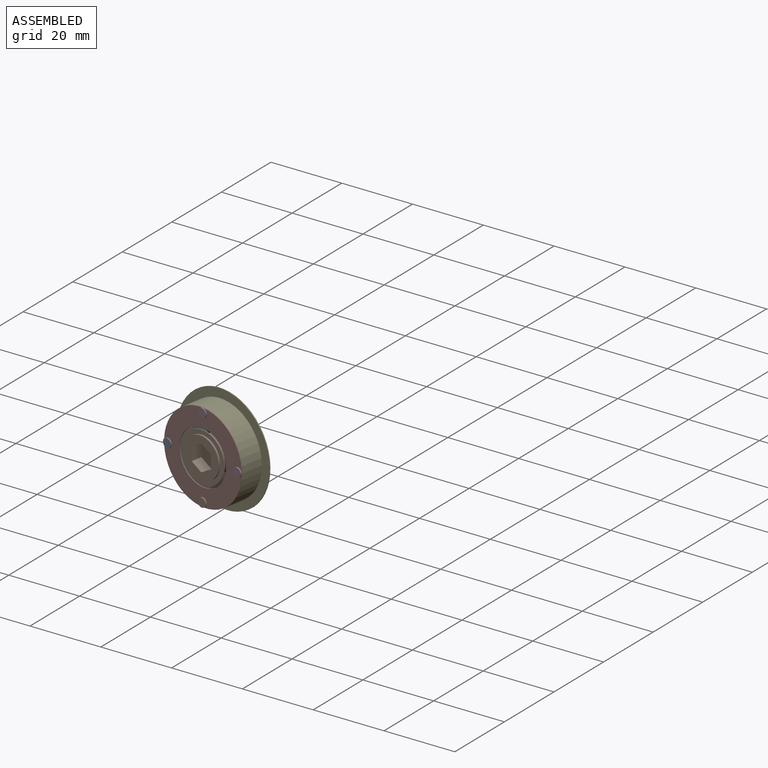
[diagram: subassembly S0 — assembled view]
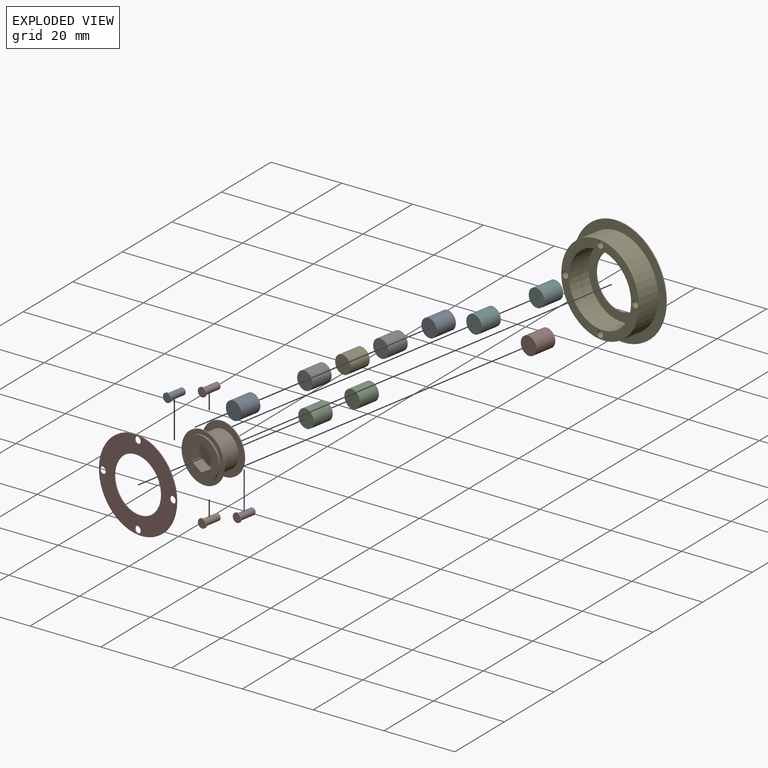
[diagram: subassembly S0 — exploded view]
SUBASSEMBLY S0 TOUR — 17 components, shown here in isolation at its own camera.

INTERNAL MATES
  1. PLANAR "Planar 15": P20 <-> P11, direction (-0.174, -0.985, 0.000) through (-57.17, 5.71, -51.19) mm
  2. PLANAR "Planar 9": P16 <-> P1, direction (0.174, 0.985, 0.000) through (-62.03, 13.28, -46.62) mm
  3. PLANAR "Planar 7": P18 <-> P1, direction (0.174, 0.985, 0.000) through (-62.03, 13.28, -46.62) mm
  4. PLANAR "Planar 11": P1 <-> P0, direction (-0.174, -0.985, 0.000) through (-56.02, 12.22, -51.19) mm
  5. CYLINDRICAL "Cylindrical 2": P20 <-> P7, axis (0.174, 0.985, 0.000) through (-57.15, 5.84, -51.19) mm
  6. PLANAR "Planar 3": P1 <-> P13, direction (-0.174, -0.985, 0.000) through (-56.02, 12.22, -51.19) mm
  7. PLANAR "Planar 5": P1 <-> P8, direction (-0.174, -0.985, 0.000) through (-56.02, 12.22, -51.19) mm
  8. PLANAR "Planar 14": P20 <-> P14, direction (-0.174, -0.985, 0.000) through (-57.17, 5.71, -51.19) mm
  9. CYLINDRICAL "Cylindrical 4": P20 <-> P14, axis (-0.174, -0.985, 0.000) through (-45.89, 3.85, -51.19) mm
  10. PLANAR "Planar 6": P7 <-> P17, direction (-0.174, -0.985, 0.000) through (-56.02, 12.22, -51.19) mm
  11. PLANAR "Planar 12": P7 <-> P20, direction (-0.174, -0.985, 0.000) through (-57.13, 5.96, -51.19) mm
  12. PLANAR "Planar 13": P4 <-> P20, direction (0.174, 0.985, 0.000) through (-57.17, 5.71, -39.76) mm
  13. PLANAR "Planar 1": P1 <-> P7, direction (0.174, 0.985, 0.000) through (-55.98, 12.47, -51.19) mm
  14. CYLINDRICAL "Cylindrical 6": P20 <-> P12, axis (-0.174, -0.985, 0.000) through (-57.15, 5.84, -62.62) mm
  15. PLANAR "Planar 2": P10 <-> P7, direction (0.174, 0.985, 0.000) through (-57.33, 12.45, -58.69) mm
  16. CYLINDRICAL "Cylindrical 5": P20 <-> P11, axis (-0.174, -0.985, 0.000) through (-68.40, 7.82, -51.19) mm
  17. PLANAR "Planar 16": P12 <-> P20, direction (0.174, 0.985, 0.000) through (-57.17, 5.71, -62.62) mm
  18. PLANAR "Planar 4": P1 <-> P3, direction (-0.174, -0.985, 0.000) through (-56.02, 12.22, -51.19) mm
  19. CYLINDRICAL "Cylindrical 1": P1 <-> P7, axis (-0.174, -0.985, 0.000) through (-56.57, 9.09, -51.19) mm
  20. CYLINDRICAL "Cylindrical 3": P20 <-> P4, axis (-0.174, -0.985, 0.000) through (-57.15, 5.84, -39.76) mm
  21. PLANAR "Planar 10": P1 <-> P9, direction (-0.174, -0.985, 0.000) through (-56.02, 12.22, -51.19) mm
  22. PLANAR "Planar 8": P1 <-> P21, direction (-0.174, -0.985, 0.000) through (-56.02, 12.22, -51.19) mm
  23. PLANAR "Planar 8": P1 <-> P21, direction (-0.174, -0.985, 0.000) through (-56.02, 12.22, -51.19) mm
  24. PLANAR "Planar 10": P1 <-> P9, direction (-0.174, -0.985, 0.000) through (-56.02, 12.22, -51.19) mm
  25. CYLINDRICAL "Cylindrical 1": P1 <-> P7, axis (-0.174, -0.985, 0.000) through (-56.57, 9.09, -51.19) mm
  26. PLANAR "Planar 15": P20 <-> P11, direction (-0.174, -0.985, 0.000) through (-57.17, 5.71, -51.19) mm
  27. PLANAR "Planar 16": P12 <-> P20, direction (0.174, 0.985, 0.000) through (-57.17, 5.71, -62.62) mm
  28. CYLINDRICAL "Cylindrical 6": P20 <-> P12, axis (-0.174, -0.985, 0.000) through (-57.15, 5.84, -62.62) mm
  29. PLANAR "Planar 9": P16 <-> P1, direction (0.174, 0.985, 0.000) through (-62.03, 13.28, -46.62) mm
  30. CYLINDRICAL "Cylindrical 2": P20 <-> P7, axis (0.174, 0.985, 0.000) through (-57.15, 5.84, -51.19) mm
  31. PLANAR "Planar 1": P1 <-> P7, direction (0.174, 0.985, 0.000) through (-55.98, 12.47, -51.19) mm
  32. CYLINDRICAL "Cylindrical 3": P20 <-> P4, axis (-0.174, -0.985, 0.000) through (-57.15, 5.84, -39.76) mm
  33. CYLINDRICAL "Cylindrical 5": P20 <-> P11, axis (-0.174, -0.985, 0.000) through (-68.40, 7.82, -51.19) mm
  34. CYLINDRICAL "Cylindrical 4": P20 <-> P14, axis (-0.174, -0.985, 0.000) through (-45.89, 3.85, -51.19) mm
  35. PLANAR "Planar 11": P1 <-> P0, direction (-0.174, -0.985, 0.000) through (-56.02, 12.22, -51.19) mm
  36. PLANAR "Planar 6": P7 <-> P17, direction (-0.174, -0.985, 0.000) through (-56.02, 12.22, -51.19) mm
  37. PLANAR "Planar 13": P4 <-> P20, direction (0.174, 0.985, 0.000) through (-57.17, 5.71, -39.76) mm
  38. PLANAR "Planar 14": P20 <-> P14, direction (-0.174, -0.985, 0.000) through (-57.17, 5.71, -51.19) mm
  39. PLANAR "Planar 3": P1 <-> P13, direction (-0.174, -0.985, 0.000) through (-56.02, 12.22, -51.19) mm
  40. PLANAR "Planar 7": P18 <-> P1, direction (0.174, 0.985, 0.000) through (-62.03, 13.28, -46.62) mm
  41. PLANAR "Planar 12": P7 <-> P20, direction (-0.174, -0.985, 0.000) through (-57.13, 5.96, -51.19) mm
  42. CYLINDRICAL "Cylindrical 1": P1 <-> P7, axis (-0.174, -0.985, 0.000) through (-56.57, 9.09, -51.19) mm
  43. PLANAR "Planar 2": P10 <-> P7, direction (0.174, 0.985, 0.000) through (-57.33, 12.45, -58.69) mm
  44. PLANAR "Planar 5": P1 <-> P8, direction (-0.174, -0.985, 0.000) through (-56.02, 12.22, -51.19) mm
  45. PLANAR "Planar 4": P1 <-> P3, direction (-0.174, -0.985, 0.000) through (-56.02, 12.22, -51.19) mm

ASSEMBLY ORDER (within the subassembly)
  1. P1 — the base component [order heuristic]
  2. P0 — core [order heuristic]
  3. P3 — core [order heuristic]
  4. P7 — core [order heuristic]
  5. P9 — core [order heuristic]
  6. P13 — core [order heuristic]
  7. P16 — core [order heuristic]
  8. P18 — core [order heuristic]
  9. P21 — core [order heuristic]
  10. P14 [order verified]
  11. P4 [order verified]
  12. P12 [order verified]
  13. P11 [order verified]
  14. P20 [order verified]
  15. P17 [order verified]
  16. P8 [order verified]
  17. P10 [order verified]
(P20 verified with a relaxed clearance tolerance: the source model stores slight part interference there.)
Order-tag legend:
  [order verified] — this step's position reverses a verified removal order: the component was checked to insert without passing through the ones already placed.
  [order heuristic] — the first 9 components form the assembly's core: parts whose collision-free extraction could not be verified, listed in mate-graph order.
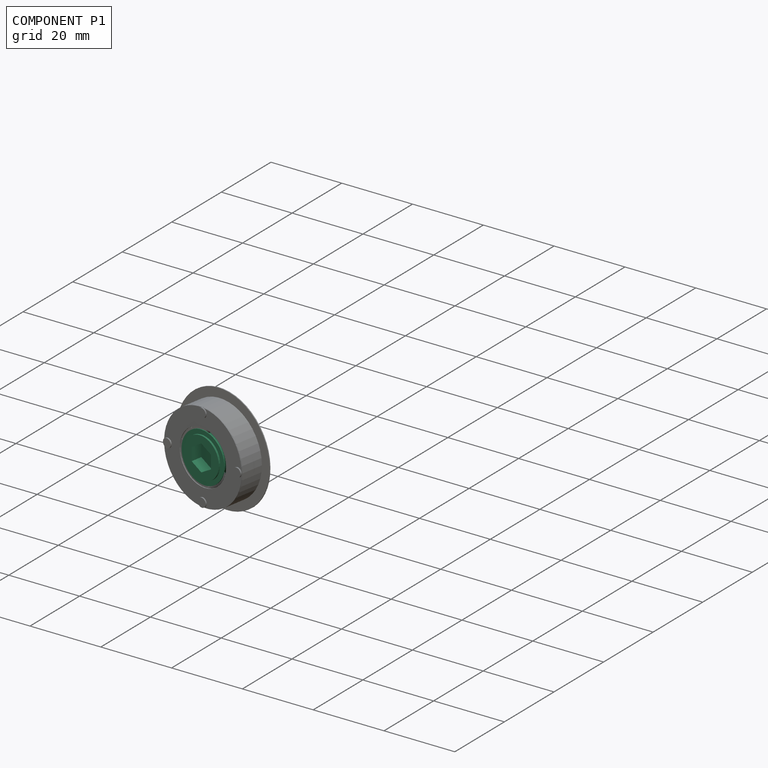
[diagram: component P1 — assembled]
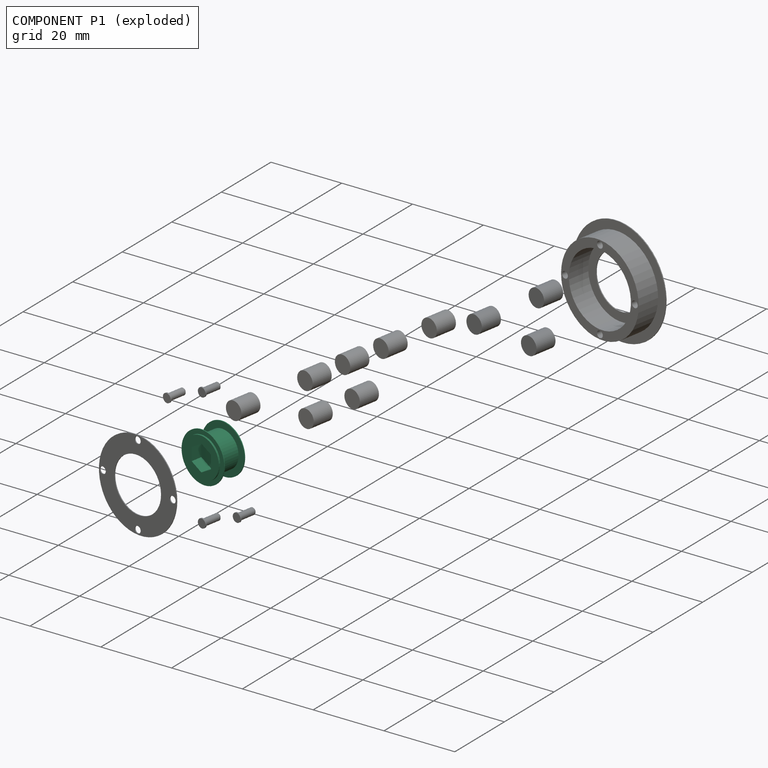
[diagram: component P1 — exploded]
COMPONENT P1 — recipe-attached (CADFS 00150281, mesh-verified: the recipe's output STEP matches this component's geometry to below the mesh-comparison resolution (tessellation chordal tolerance ~0.0316 mm)).
Held by: PLANAR mate "Planar 9" to P16; PLANAR mate "Planar 7" to P18; PLANAR mate "Planar 11" to P0; PLANAR mate "Planar 3" to P13; PLANAR mate "Planar 5" to P8; PLANAR mate "Planar 1" to P7; PLANAR mate "Planar 4" to P3; CYLINDRICAL mate "Cylindrical 1" to P7; PLANAR mate "Planar 10" to P9; PLANAR mate "Planar 8" to P21; PLANAR mate "Planar 8" to P21; PLANAR mate "Planar 10" to P9; CYLINDRICAL mate "Cylindrical 1" to P7; PLANAR mate "Planar 9" to P16; PLANAR mate "Planar 1" to P7; PLANAR mate "Planar 11" to P0; PLANAR mate "Planar 3" to P13; PLANAR mate "Planar 7" to P18; CYLINDRICAL mate "Cylindrical 1" to P7; PLANAR mate "Planar 5" to P8; PLANAR mate "Planar 4" to P3.
Construction recipe (FeatureScript — the CAD program that rebuilds this solid; sketch coordinates are in the units given by the * unit suffixes, e.g. mm):

FeatureScript 1511;
import(path : "onshape/std/geometry.fs", version : "1511.0");
import(path : "onshape/std/common.fs", version : "1511.0");
const mm = millimeter;
const VERTEX = EntityType.VERTEX;
const EDGE = EntityType.EDGE;
const FACE = EntityType.FACE;
const BODY = EntityType.BODY;
function v(x, y){return vector(x, y);}
function OD(order){return orderDisambiguation(order);}
function OSD(set){return originalSetDisambiguation(set);}
function TD(topology){return topologyDisambiguation(topology);}
function TDD(query){return trueDependencyDisambiguation(query);}
function sQuery(a, b, c) {return sketchEntityQuery(a, b, c);}

annotation { "Feature Type Name" : "Feature", "Feature Type Description" : "" }
export const myFeature = defineFeature(function(context is Context, id is Id, definition is map)
    precondition{}
    {
        {
            var Q0;
            Q0=qCreatedBy(makeId("Front.planeOp"),FACE);
            var sketch = newSketch(context, id + "F0", { "sketchPlane" : qUnion([Q0])});
            skCircle(sketch, "E0", {"center": v(0, 0) * mm, "radius": 5.08 * mm});
            skSolve(sketch);
        }
        {
            var Q0;
            Q0 = qSketchRegion(id + "F0", true);
            extrude(context, id + "F1", {"entities" : qUnion([Q0]), "depth" : 6.35 * mm});
        }
        {
            var Q0;
            Q0=makeQuery(id+"F1.opExtrude","CAP_FACE",FACE,{"disambiguationData":[OSD([sQuery(id+"F0.wireOp",EDGE,"E0")])],"isStart":false});
            var sketch = newSketch(context, id + "F2", { "sketchPlane" : qUnion([Q0])});
            skCircle(sketch, "E1", {"center": v(0, 0) * mm, "radius": 6.99 * mm});
            skSolve(sketch);
        }
        {
            var Q0;
            Q0 = qSketchRegion(id + "F2", true);
            extrude(context, id + "F3", {"entities" : qUnion([Q0]), "operationType" : NewBodyOperationType.ADD, "depth" : 0.25 * mm});
        }
        {
            var Q0;
            Q0=qCreatedBy(makeId("Front.planeOp"),FACE);
            var sketch = newSketch(context, id + "F4", { "sketchPlane" : qUnion([Q0])});
            skCircle(sketch, "E2", {"center": v(0, 0) * mm, "radius": 6.99 * mm});
            skSolve(sketch);
        }
        {
            var Q0;
            Q0=makeQuery(id+"F4.imprint","IMPRINT",FACE,{"disambiguationData":[TD([[makeQuery(id+"F4.imprint","IMPRINT",EDGE,{"derivedFrom":sQuery(id+"F4.wireOp",EDGE,"E2")}),1.0]])]});
            extrude(context, id + "F5", {"entities" : qUnion([Q0]), "operationType" : NewBodyOperationType.ADD, "oppositeDirection" : true, "depth" : 0.25 * mm});
        }
        {
            var Q0;
            Q0=makeQuery(id+"F3.opExtrude","CAP_FACE",FACE,{"disambiguationData":[OSD([sQuery(id+"F2.wireOp",EDGE,"E1")])],"isStart":false});
            var sketch = newSketch(context, id + "F6", { "sketchPlane" : qUnion([Q0])});
            skCircle(sketch, "E3.cCircle", {"center": v(0, 0) * mm, "radius": 3.18 * mm, "construction": true});
            skLineSegment(sketch, "E3.0", {"start": v(-2.75, 1.59) * mm, "end": v(0, 3.18) * mm});
            skLineSegment(sketch, "E3.1", {"start": v(0, 3.18) * mm, "end": v(2.75, 1.59) * mm});
            skLineSegment(sketch, "E3.2", {"start": v(2.75, 1.59) * mm, "end": v(2.75, -1.59) * mm});
            skLineSegment(sketch, "E3.3", {"start": v(2.75, -1.59) * mm, "end": v(0, -3.18) * mm});
            skLineSegment(sketch, "E3.4", {"start": v(0, -3.18) * mm, "end": v(-2.75, -1.59) * mm});
            skLineSegment(sketch, "E3.5", {"start": v(-2.75, -1.59) * mm, "end": v(-2.75, 1.59) * mm});
            skSolve(sketch);
        }
        {
            var Q0;
            Q0=makeQuery(id+"F6.imprint","IMPRINT",FACE,{"disambiguationData":[TD([[makeQuery(id+"F6.imprint","IMPRINT",EDGE,{"derivedFrom":sQuery(id+"F6.wireOp",EDGE,"E3.0")}),-1.0]])]});
            extrude(context, id + "F7", {"entities" : qUnion([Q0]), "operationType" : NewBodyOperationType.REMOVE, "oppositeDirection" : true, "depth" : 3.17 * mm});
        }
        {
            var Q0;
            Q0=makeQuery(id+"F5.opExtrude","CAP_FACE",FACE,{"disambiguationData":[OSD([sQuery(id+"F4.wireOp",EDGE,"E2")])],"isStart":false});
            var sketch = newSketch(context, id + "F8", { "sketchPlane" : qUnion([Q0])});
            skCircle(sketch, "E4", {"center": v(0, 0) * mm, "radius": 5.72 * mm});
            skSolve(sketch);
        }
        {
            var Q0;
            Q0 = qSketchRegion(id + "F8", true);
            extrude(context, id + "F9", {"entities" : qUnion([Q0]), "operationType" : NewBodyOperationType.ADD, "depth" : 0.5 * mm});
        }
        {
            var Q0;
            Q0=makeQuery(id+"F9.opExtrude","CAP_FACE",FACE,{"disambiguationData":[OSD([sQuery(id+"F8.wireOp",EDGE,"E4")])],"isStart":false});
            var sketch = newSketch(context, id + "F10", { "sketchPlane" : qUnion([Q0])});
            skCircle(sketch, "E5.cCircle", {"center": v(0, 0) * mm, "radius": 3.18 * mm, "construction": true});
            skLineSegment(sketch, "E5.0", {"start": v(-3.18, -1.83) * mm, "end": v(-3.18, 1.83) * mm});
            skLineSegment(sketch, "E5.1", {"start": v(-3.18, 1.83) * mm, "end": v(0, 3.67) * mm});
            skLineSegment(sketch, "E5.2", {"start": v(0, 3.67) * mm, "end": v(3.17, 1.83) * mm});
            skLineSegment(sketch, "E5.3", {"start": v(3.17, 1.83) * mm, "end": v(3.18, -1.83) * mm});
            skLineSegment(sketch, "E5.4", {"start": v(3.18, -1.83) * mm, "end": v(0, -3.67) * mm});
            skLineSegment(sketch, "E5.5", {"start": v(0, -3.67) * mm, "end": v(-3.18, -1.83) * mm});
            skPoint(sketch, "E5.0.midPoint", {"position": v(-3.18, 0) * mm});
            skSolve(sketch);
        }
        {
            var Q0;
            Q0=makeQuery(id+"F10.imprint","IMPRINT",FACE,{"disambiguationData":[TD([[makeQuery(id+"F10.imprint","IMPRINT",EDGE,{"derivedFrom":sQuery(id+"F10.wireOp",EDGE,"E5.0")}),-1.0]])]});
            extrude(context, id + "F11", {"entities" : qUnion([Q0]), "operationType" : NewBodyOperationType.REMOVE, "oppositeDirection" : true, "depth" : 3.17 * mm});
        }
    });
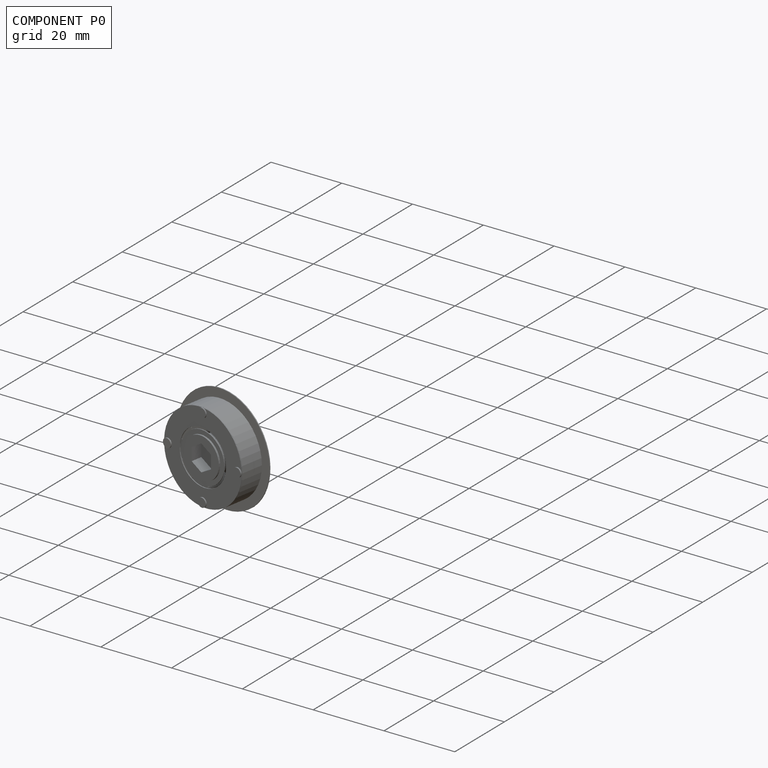
[diagram: component P0 — assembled]
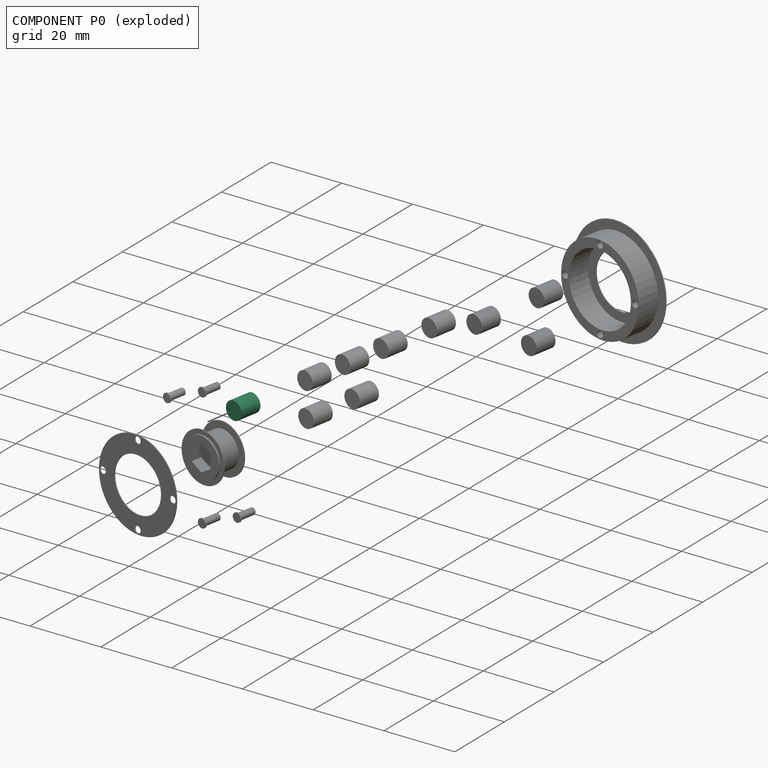
[diagram: component P0 — exploded]
COMPONENT P0 — recipe-attached (CADFS 00150288, mesh-verified: the recipe's output STEP matches this component's geometry to below the mesh-comparison resolution (tessellation chordal tolerance ~0.0142 mm)).
Held by: PLANAR mate "Planar 11" to P1; PLANAR mate "Planar 11" to P1.
Construction recipe (FeatureScript — the CAD program that rebuilds this solid; sketch coordinates are in the units given by the * unit suffixes, e.g. mm):

FeatureScript 1511;
import(path : "onshape/std/geometry.fs", version : "1511.0");
import(path : "onshape/std/common.fs", version : "1511.0");
const mm = millimeter;
const VERTEX = EntityType.VERTEX;
const EDGE = EntityType.EDGE;
const FACE = EntityType.FACE;
const BODY = EntityType.BODY;
function v(x, y){return vector(x, y);}
function OD(order){return orderDisambiguation(order);}
function OSD(set){return originalSetDisambiguation(set);}
function TD(topology){return topologyDisambiguation(topology);}
function TDD(query){return trueDependencyDisambiguation(query);}
function sQuery(a, b, c) {return sketchEntityQuery(a, b, c);}

annotation { "Feature Type Name" : "Feature", "Feature Type Description" : "" }
export const myFeature = defineFeature(function(context is Context, id is Id, definition is map)
    precondition{}
    {
        {
            var Q0;
            Q0=qCreatedBy(makeId("Front.planeOp"),FACE);
            var sketch = newSketch(context, id + "F0", { "sketchPlane" : qUnion([Q0])});
            skCircle(sketch, "E0", {"center": v(0, 0) * mm, "radius": 2.54 * mm});
            skSolve(sketch);
        }
        {
            var Q0;
            Q0 = qSketchRegion(id + "F0", true);
            extrude(context, id + "F1", {"entities" : qUnion([Q0]), "depth" : 6.22 * mm});
        }
    });
